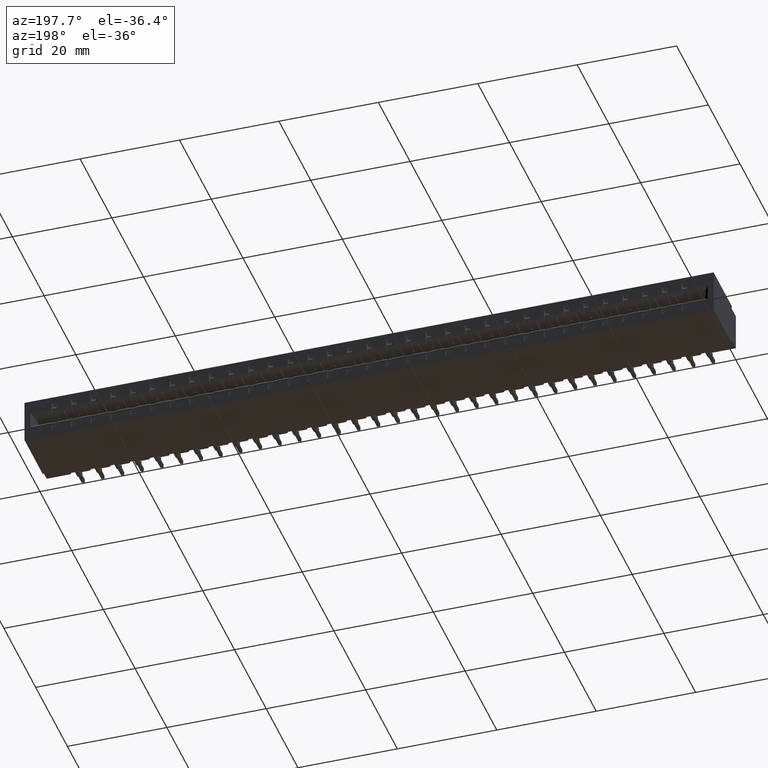
[diagram: clean part render]
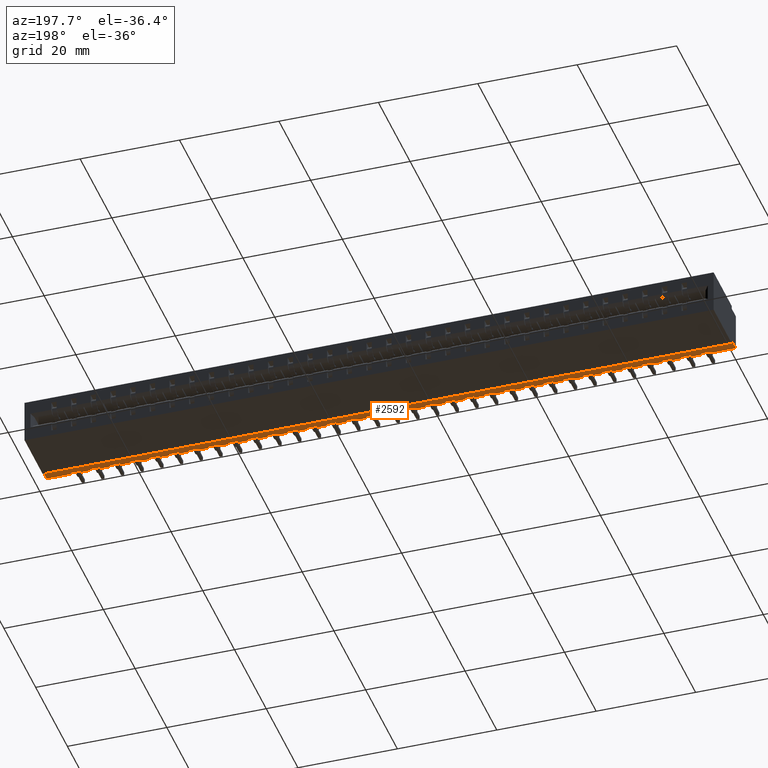
[diagram: same view with one face highlighted and labeled with its STEP entity id]
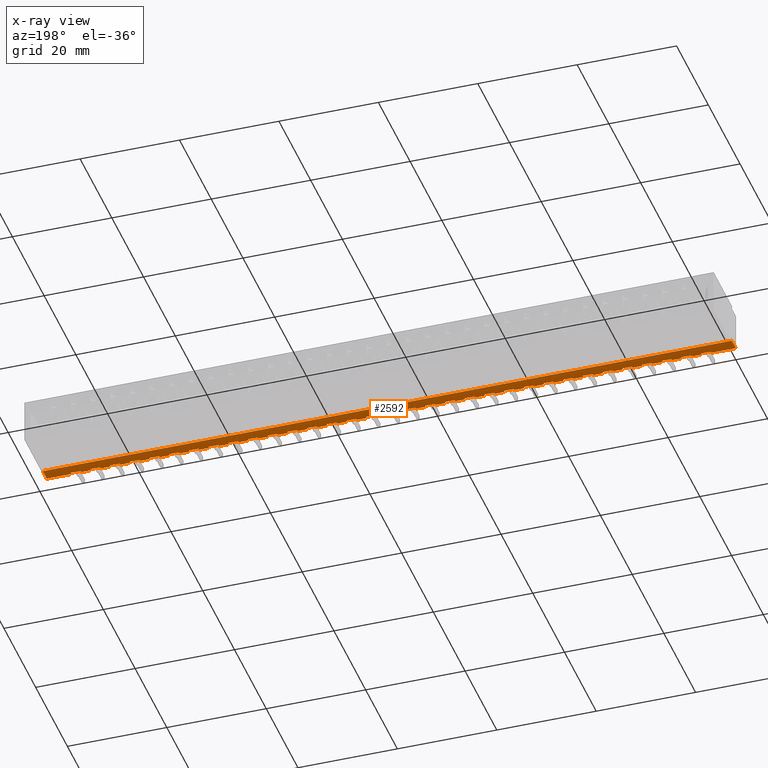
[diagram: x-ray of the same camera — body ghosted, the highlighted face saturated]
A machine part, auxiliary view. The second image highlights one B-rep face of the part: STEP entity #2592.
The next image is the same camera in x-ray: the body ghosted, the highlighted face saturated — about 0% of this face is hidden behind the body in this view.
In plain terms, the highlighted planar face has unit normal (0, 0, 1).
Its self-contained STEP definition (entity closure, byte-faithful):
#32 = ORIENTED_EDGE ( 'NONE', *, *, #50970, .T. ) ;
#72 = DIRECTION ( 'NONE',  ( -1.000000000000000000, -0.0000000000000000000, -0.0000000000000000000 ) ) ;
#219 = VERTEX_POINT ( 'NONE', #11016 ) ;
#254 = VERTEX_POINT ( 'NONE', #42965 ) ;
#300 = EDGE_CURVE ( 'NONE', #30091, #1377, #9610, .T. ) ;
#425 = ORIENTED_EDGE ( 'NONE', *, *, #21946, .F. ) ;
#434 = ORIENTED_EDGE ( 'NONE', *, *, #4743, .F. ) ;
#478 = VERTEX_POINT ( 'NONE', #8825 ) ;
#519 = VERTEX_POINT ( 'NONE', #8632 ) ;
#541 = ORIENTED_EDGE ( 'NONE', *, *, #15972, .F. ) ;
#695 = LINE ( 'NONE', #13894, #45611 ) ;
#735 = DIRECTION ( 'NONE',  ( -1.000000000000000000, -0.0000000000000000000, -0.0000000000000000000 ) ) ;
#792 = ORIENTED_EDGE ( 'NONE', *, *, #45967, .F. ) ;
#874 = EDGE_CURVE ( 'NONE', #23791, #34614, #8833, .T. ) ;
#900 = CARTESIAN_POINT ( 'NONE',  ( 2.920999999999999800, 0.01499999999999999400, -0.3249999999999999600 ) ) ;
#1068 = LINE ( 'NONE', #34716, #7372 ) ;
#1128 = CARTESIAN_POINT ( 'NONE',  ( 2.365999999999999700, 0.0000000000000000000, -0.3249999999999999600 ) ) ;
#1172 = VECTOR ( 'NONE', #5429, 39.37007874015748100 ) ;
#1226 = CARTESIAN_POINT ( 'NONE',  ( 5.458000000000000200, 0.0000000000000000000, -0.3249999999999999600 ) ) ;
#1231 = AXIS2_PLACEMENT_3D ( 'NONE', #30123, #39291, #12460 ) ;
#1301 = VERTEX_POINT ( 'NONE', #11270 ) ;
#1377 = VERTEX_POINT ( 'NONE', #51082 ) ;
#1468 = CARTESIAN_POINT ( 'NONE',  ( 1.741999999999999500, 0.01499999999999999400, -0.3249999999999999600 ) ) ;
#1492 = VERTEX_POINT ( 'NONE', #12622 ) ;
#1501 = EDGE_CURVE ( 'NONE', #49022, #11347, #53638, .T. ) ;
#1534 = CARTESIAN_POINT ( 'NONE',  ( 5.458000000000000200, 0.0000000000000000000, -0.3249999999999999600 ) ) ;
#1593 = ORIENTED_EDGE ( 'NONE', *, *, #24805, .F. ) ;
#1639 = VECTOR ( 'NONE', #32645, 39.37007874015748100 ) ;
#1656 = EDGE_CURVE ( 'NONE', #21622, #13574, #47276, .T. ) ;
#1660 = DIRECTION ( 'NONE',  ( 1.000000000000000000, 0.0000000000000000000, 0.0000000000000000000 ) ) ;
#1668 = CARTESIAN_POINT ( 'NONE',  ( 5.458000000000000200, 0.0000000000000000000, -0.3249999999999999600 ) ) ;
#1679 = EDGE_CURVE ( 'NONE', #23560, #37620, #40264, .T. ) ;
#1684 = LINE ( 'NONE', #26406, #48019 ) ;
#1697 = VECTOR ( 'NONE', #54292, 39.37007874015748100 ) ;
#1818 = DIRECTION ( 'NONE',  ( 1.000000000000000000, -0.0000000000000000000, -2.307304048702925100E-016 ) ) ;
#1858 = ORIENTED_EDGE ( 'NONE', *, *, #34017, .T. ) ;
#2030 = DIRECTION ( 'NONE',  ( 1.000000000000000000, 0.0000000000000000000, 0.0000000000000000000 ) ) ;
#2057 = LINE ( 'NONE', #12162, #17596 ) ;
#2108 = VERTEX_POINT ( 'NONE', #57413 ) ;
#2148 = VERTEX_POINT ( 'NONE', #12371 ) ;
#2199 = LINE ( 'NONE', #38430, #27548 ) ;
#2283 = CARTESIAN_POINT ( 'NONE',  ( 5.458000000000000200, 0.0000000000000000000, -0.3249999999999999600 ) ) ;
#2290 = CIRCLE ( 'NONE', #35405, 0.01500000000000024900 ) ;
#2363 = CARTESIAN_POINT ( 'NONE',  ( 4.480999999999999900, 0.01499999999999999400, -0.3249999999999999600 ) ) ;
#2429 = VERTEX_POINT ( 'NONE', #47204 ) ;
#2543 = CARTESIAN_POINT ( 'NONE',  ( 3.715999999999999700, 0.01499999999999999400, -0.3249999999999999600 ) ) ;
#2556 = DIRECTION ( 'NONE',  ( 1.000000000000000000, 0.0000000000000000000, 0.0000000000000000000 ) ) ;
#2563 = ORIENTED_EDGE ( 'NONE', *, *, #6717, .F. ) ;
#2585 = LINE ( 'NONE', #36772, #11046 ) ;
#2592 = ADVANCED_FACE ( 'NONE', ( #26178 ), #22344, .F. ) ;
#2631 = VERTEX_POINT ( 'NONE', #18382 ) ;
#2664 = DIRECTION ( 'NONE',  ( -1.000000000000000000, -0.0000000000000000000, -0.0000000000000000000 ) ) ;
#2666 = EDGE_CURVE ( 'NONE', #39478, #49022, #36660, .T. ) ;
#2717 = VECTOR ( 'NONE', #24525, 39.37007874015748100 ) ;
#2804 = EDGE_CURVE ( 'NONE', #21392, #12772, #19136, .T. ) ;
#2904 = AXIS2_PLACEMENT_3D ( 'NONE', #12680, #13270, #17429 ) ;
#2949 = AXIS2_PLACEMENT_3D ( 'NONE', #42215, #51228, #15387 ) ;
#2950 = CARTESIAN_POINT ( 'NONE',  ( 2.239999999999999800, 0.01500000000000003100, -0.3249999999999999600 ) ) ;
#3046 = AXIS2_PLACEMENT_3D ( 'NONE', #57612, #39799, #31011 ) ;
#3052 = CARTESIAN_POINT ( 'NONE',  ( 0.5809999999999998500, 0.01499999999999999400, -0.3249999999999999600 ) ) ;
#3070 = ORIENTED_EDGE ( 'NONE', *, *, #32432, .F. ) ;
#3078 = CARTESIAN_POINT ( 'NONE',  ( 5.458000000000000200, 0.0000000000000000000, -0.3249999999999999600 ) ) ;
#3107 = DIRECTION ( 'NONE',  ( -1.000000000000000000, -0.0000000000000000000, -0.0000000000000000000 ) ) ;
#3115 = CARTESIAN_POINT ( 'NONE',  ( 3.457999999999999700, 0.0000000000000000000, -0.3249999999999999600 ) ) ;
#3119 = DIRECTION ( 'NONE',  ( 1.000000000000000000, -0.0000000000000000000, -2.307304048702925100E-016 ) ) ;
#3154 = VECTOR ( 'NONE', #28295, 39.37007874015748100 ) ;
#3168 = AXIS2_PLACEMENT_3D ( 'NONE', #7358, #7165, #16831 ) ;
#3218 = EDGE_CURVE ( 'NONE', #56304, #46181, #30250, .T. ) ;
#3258 = CARTESIAN_POINT ( 'NONE',  ( 5.458000000000000200, 0.0000000000000000000, -0.3249999999999999600 ) ) ;
#3347 = CARTESIAN_POINT ( 'NONE',  ( 1.429999999999999700, 0.0000000000000000000, -0.3249999999999999600 ) ) ;
#3421 = DIRECTION ( 'NONE',  ( -1.000000000000000000, -0.0000000000000000000, -0.0000000000000000000 ) ) ;
#3425 = CARTESIAN_POINT ( 'NONE',  ( 3.940999999999999800, 0.01499999999999999400, -0.3249999999999999600 ) ) ;
#3619 = ORIENTED_EDGE ( 'NONE', *, *, #53204, .T. ) ;
#3651 = ORIENTED_EDGE ( 'NONE', *, *, #24545, .F. ) ;
#3691 = EDGE_CURVE ( 'NONE', #18570, #219, #10540, .T. ) ;
#3737 = ORIENTED_EDGE ( 'NONE', *, *, #52756, .T. ) ;
#3776 = EDGE_CURVE ( 'NONE', #54683, #18570, #695, .T. ) ;
#3800 = CIRCLE ( 'NONE', #2904, 0.01500000000000024900 ) ;
#3849 = EDGE_CURVE ( 'NONE', #41847, #32796, #19715, .T. ) ;
#3864 = VERTEX_POINT ( 'NONE', #23350 ) ;
#3883 = VERTEX_POINT ( 'NONE', #51537 ) ;
#3890 = CARTESIAN_POINT ( 'NONE',  ( 1.615999999999999900, 0.01500000000000003100, -0.3249999999999999600 ) ) ;
#3891 = CARTESIAN_POINT ( 'NONE',  ( 0.0000000000000000000, 0.0000000000000000000, -0.3249999999999999600 ) ) ;
#4122 = CARTESIAN_POINT ( 'NONE',  ( 2.311999999999999800, 0.0000000000000000000, -0.3249999999999999600 ) ) ;
#4127 = ORIENTED_EDGE ( 'NONE', *, *, #2666, .T. ) ;
#4255 = LINE ( 'NONE', #1668, #42854 ) ;
#4318 = CARTESIAN_POINT ( 'NONE',  ( 5.458000000000000200, 0.0000000000000000000, -0.3249999999999999600 ) ) ;
#4374 = VERTEX_POINT ( 'NONE', #33204 ) ;
#4416 = DIRECTION ( 'NONE',  ( 1.000000000000000000, 0.0000000000000000000, 0.0000000000000000000 ) ) ;
#4430 = VERTEX_POINT ( 'NONE', #2363 ) ;
#4442 = DIRECTION ( 'NONE',  ( 1.000000000000000000, 0.0000000000000000000, 0.0000000000000000000 ) ) ;
#4571 = CIRCLE ( 'NONE', #30405, 0.01500000000000004500 ) ;
#4587 = CARTESIAN_POINT ( 'NONE',  ( 1.063999999999999800, 0.01499999999999999400, -0.3249999999999999600 ) ) ;
#4730 = CIRCLE ( 'NONE', #56901, 0.01499999999999997700 ) ;
#4743 = EDGE_CURVE ( 'NONE', #15551, #42585, #2057, .T. ) ;
#4791 = DIRECTION ( 'NONE',  ( -1.000000000000000000, -0.0000000000000000000, -0.0000000000000000000 ) ) ;
#4866 = CARTESIAN_POINT ( 'NONE',  ( 1.063999999999999800, 0.0000000000000000000, -0.3249999999999999600 ) ) ;
#4962 = DIRECTION ( 'NONE',  ( -1.000000000000000000, -0.0000000000000000000, -0.0000000000000000000 ) ) ;
#4971 = ORIENTED_EDGE ( 'NONE', *, *, #20287, .T. ) ;
#5006 = VECTOR ( 'NONE', #45659, 39.37007874015748100 ) ;
#5056 = VECTOR ( 'NONE', #27101, 39.37007874015748100 ) ;
#5119 = EDGE_CURVE ( 'NONE', #25432, #11347, #17546, .T. ) ;
#5190 = AXIS2_PLACEMENT_3D ( 'NONE', #19731, #42012, #41616 ) ;
#5204 = CARTESIAN_POINT ( 'NONE',  ( 3.871999999999999400, 0.01499999999999999400, -0.3249999999999999600 ) ) ;
#5261 = VERTEX_POINT ( 'NONE', #39140 ) ;
#5313 = CARTESIAN_POINT ( 'NONE',  ( 3.955999999999999500, 0.01500000000000003100, -0.3249999999999999600 ) ) ;
#5354 = VECTOR ( 'NONE', #18014, 39.37007874015748100 ) ;
#5364 = DIRECTION ( 'NONE',  ( 0.0000000000000000000, 0.0000000000000000000, 1.000000000000000000 ) ) ;
#5408 = CARTESIAN_POINT ( 'NONE',  ( 4.495999999999999600, 0.01499999999999999400, -0.3249999999999999600 ) ) ;
#5429 = DIRECTION ( 'NONE',  ( 1.000000000000000000, -0.0000000000000000000, -2.307304048702925100E-016 ) ) ;
#5476 = CARTESIAN_POINT ( 'NONE',  ( 5.017999999999999800, 0.0000000000000000000, -0.3249999999999999600 ) ) ;
#5595 = CARTESIAN_POINT ( 'NONE',  ( 3.403999999999999500, 0.0000000000000000000, -0.3249999999999999600 ) ) ;
#5644 = DIRECTION ( 'NONE',  ( 1.000000000000000000, 0.0000000000000000000, 0.0000000000000000000 ) ) ;
#5778 = EDGE_CURVE ( 'NONE', #22591, #36468, #48962, .T. ) ;
#5804 = CARTESIAN_POINT ( 'NONE',  ( 3.769999999999999600, 0.01499999999999999400, -0.3249999999999999600 ) ) ;
#5881 = DIRECTION ( 'NONE',  ( 1.000000000000000000, -0.0000000000000000000, -2.307304048702925100E-016 ) ) ;
#5892 = DIRECTION ( 'NONE',  ( -0.0000000000000000000, -0.0000000000000000000, -1.000000000000000000 ) ) ;
#5991 = CIRCLE ( 'NONE', #39375, 0.01500000000000024900 ) ;
#6031 = DIRECTION ( 'NONE',  ( -1.000000000000000000, -0.0000000000000000000, -0.0000000000000000000 ) ) ;
#6089 = EDGE_CURVE ( 'NONE', #48986, #16824, #22303, .T. ) ;
#6201 = CARTESIAN_POINT ( 'NONE',  ( 5.458000000000000200, 0.0000000000000000000, -0.3249999999999999600 ) ) ;
#6229 = VECTOR ( 'NONE', #15093, 39.37007874015748100 ) ;
#6251 = DIRECTION ( 'NONE',  ( 1.000000000000000000, 0.0000000000000000000, 0.0000000000000000000 ) ) ;
#6279 = VERTEX_POINT ( 'NONE', #46755 ) ;
#6288 = CARTESIAN_POINT ( 'NONE',  ( 4.735999999999999800, 0.01500000000000003100, -0.3249999999999999600 ) ) ;
#6510 = EDGE_CURVE ( 'NONE', #53002, #20632, #33474, .T. ) ;
#6594 = CIRCLE ( 'NONE', #16447, 0.01499999999999997700 ) ;
#6685 = VERTEX_POINT ( 'NONE', #54150 ) ;
#6717 = EDGE_CURVE ( 'NONE', #19704, #24791, #21507, .T. ) ;
#6726 = VERTEX_POINT ( 'NONE', #13971 ) ;
#6755 = ORIENTED_EDGE ( 'NONE', *, *, #40561, .T. ) ;
#6880 = DIRECTION ( 'NONE',  ( 1.000000000000000000, -0.0000000000000000000, -2.307304048702925100E-016 ) ) ;
#6953 = LINE ( 'NONE', #47696, #8209 ) ;
#6954 = VECTOR ( 'NONE', #19171, 39.37007874015748100 ) ;
#6962 = VECTOR ( 'NONE', #51446, 39.37007874015748100 ) ;
#6987 = AXIS2_PLACEMENT_3D ( 'NONE', #35921, #8990, #14522 ) ;
#7165 = DIRECTION ( 'NONE',  ( 0.0000000000000000000, 0.0000000000000000000, 1.000000000000000000 ) ) ;
#7171 = DIRECTION ( 'NONE',  ( -1.000000000000000000, -0.0000000000000000000, -0.0000000000000000000 ) ) ;
#7358 = CARTESIAN_POINT ( 'NONE',  ( 2.209999999999999500, 0.01499999999999999400, -0.3249999999999999600 ) ) ;
#7372 = VECTOR ( 'NONE', #34137, 39.37007874015748100 ) ;
#7392 = CARTESIAN_POINT ( 'NONE',  ( 5.458000000000000200, 0.0000000000000000000, -0.3249999999999999600 ) ) ;
#7437 = EDGE_CURVE ( 'NONE', #21092, #42585, #52232, .T. ) ;
#7476 = EDGE_CURVE ( 'NONE', #36214, #21092, #50831, .T. ) ;
#7576 = EDGE_CURVE ( 'NONE', #20396, #54816, #29145, .T. ) ;
#7724 = ORIENTED_EDGE ( 'NONE', *, *, #32521, .T. ) ;
#7782 = EDGE_CURVE ( 'NONE', #2631, #44580, #33302, .T. ) ;
#7809 = CARTESIAN_POINT ( 'NONE',  ( 3.232999999999999700, 0.01499999999999999400, -0.3249999999999999600 ) ) ;
#7995 = EDGE_CURVE ( 'NONE', #27292, #52967, #48009, .T. ) ;
#8139 = AXIS2_PLACEMENT_3D ( 'NONE', #25774, #30051, #57060 ) ;
#8179 = ORIENTED_EDGE ( 'NONE', *, *, #22323, .T. ) ;
#8199 = EDGE_CURVE ( 'NONE', #57283, #53015, #48631, .T. ) ;
#8209 = VECTOR ( 'NONE', #43763, 39.37007874015748100 ) ;
#8241 = ORIENTED_EDGE ( 'NONE', *, *, #14011, .T. ) ;
#8258 = CARTESIAN_POINT ( 'NONE',  ( 3.799999999999999400, 0.01500000000000003100, -0.3249999999999999600 ) ) ;
#8281 = DIRECTION ( 'NONE',  ( 0.0000000000000000000, 0.0000000000000000000, 1.000000000000000000 ) ) ;
#8343 = CARTESIAN_POINT ( 'NONE',  ( 4.324999999999999300, 0.01499999999999999400, -0.3249999999999999600 ) ) ;
#8368 = AXIS2_PLACEMENT_3D ( 'NONE', #41033, #41224, #50287 ) ;
#8451 = DIRECTION ( 'NONE',  ( -1.000000000000000000, -0.0000000000000000000, -0.0000000000000000000 ) ) ;
#8555 = CARTESIAN_POINT ( 'NONE',  ( 0.3679999999999998800, 0.01500000000000003100, -0.3249999999999999600 ) ) ;
#8582 = ORIENTED_EDGE ( 'NONE', *, *, #3849, .T. ) ;
#8584 = ORIENTED_EDGE ( 'NONE', *, *, #31332, .F. ) ;
#8632 = CARTESIAN_POINT ( 'NONE',  ( 2.609000000000000000, 0.01499999999999999400, -0.3249999999999999600 ) ) ;
#8739 = ORIENTED_EDGE ( 'NONE', *, *, #25112, .T. ) ;
#8754 = VECTOR ( 'NONE', #37812, 39.37007874015748100 ) ;
#8771 = ORIENTED_EDGE ( 'NONE', *, *, #49583, .T. ) ;
#8804 = ORIENTED_EDGE ( 'NONE', *, *, #33823, .F. ) ;
#8809 = DIRECTION ( 'NONE',  ( -1.000000000000000000, -0.0000000000000000000, -0.0000000000000000000 ) ) ;
#8813 = ORIENTED_EDGE ( 'NONE', *, *, #26950, .T. ) ;
#8825 = CARTESIAN_POINT ( 'NONE',  ( 0.6649999999999999200, 0.01499999999999999400, -0.3249999999999999600 ) ) ;
#8827 = ORIENTED_EDGE ( 'NONE', *, *, #7576, .T. ) ;
#8833 = LINE ( 'NONE', #7392, #21502 ) ;
#8928 = CIRCLE ( 'NONE', #43784, 0.01500000000000024900 ) ;
#8939 = EDGE_CURVE ( 'NONE', #52530, #6279, #12063, .T. ) ;
#8990 = DIRECTION ( 'NONE',  ( -0.0000000000000000000, -0.0000000000000000000, -1.000000000000000000 ) ) ;
#9021 = DIRECTION ( 'NONE',  ( 1.000000000000000000, 0.0000000000000000000, 0.0000000000000000000 ) ) ;
#9118 = DIRECTION ( 'NONE',  ( 1.000000000000000000, -0.0000000000000000000, -2.307304048702925100E-016 ) ) ;
#9136 = CIRCLE ( 'NONE', #24113, 0.01500000000000024900 ) ;
#9162 = VECTOR ( 'NONE', #22186, 39.37007874015748100 ) ;
#9248 = AXIS2_PLACEMENT_3D ( 'NONE', #47618, #42905, #24750 ) ;
#9292 = DIRECTION ( 'NONE',  ( 1.000000000000000000, 0.0000000000000000000, 0.0000000000000000000 ) ) ;
#9298 = EDGE_CURVE ( 'NONE', #32674, #51879, #46379, .T. ) ;
#9427 = CARTESIAN_POINT ( 'NONE',  ( 2.677999999999999500, 0.0000000000000000000, -0.3249999999999999600 ) ) ;
#9433 = DIRECTION ( 'NONE',  ( 1.000000000000000000, 0.0000000000000000000, 0.0000000000000000000 ) ) ;
#9610 = CIRCLE ( 'NONE', #8139, 0.01499999999999997700 ) ;
#9648 = EDGE_CURVE ( 'NONE', #42353, #37199, #2199, .T. ) ;
#9738 = AXIS2_PLACEMENT_3D ( 'NONE', #5408, #41884, #15078 ) ;
#9748 = DIRECTION ( 'NONE',  ( -1.000000000000000000, -0.0000000000000000000, -0.0000000000000000000 ) ) ;
#10071 = CARTESIAN_POINT ( 'NONE',  ( 4.652000000000000100, 0.01499999999999999400, -0.3249999999999999600 ) ) ;
#10113 = AXIS2_PLACEMENT_3D ( 'NONE', #44701, #35748, #13166 ) ;
#10125 = AXIS2_PLACEMENT_3D ( 'NONE', #22377, #40892, #40123 ) ;
#10144 = CARTESIAN_POINT ( 'NONE',  ( 2.834000000000000100, 0.01499999999999999400, -0.3249999999999999600 ) ) ;
#10221 = ORIENTED_EDGE ( 'NONE', *, *, #1679, .F. ) ;
#10233 = CARTESIAN_POINT ( 'NONE',  ( 4.495999999999999600, 0.0000000000000000000, -0.3249999999999999600 ) ) ;
#10265 = VERTEX_POINT ( 'NONE', #45743 ) ;
#10337 = CARTESIAN_POINT ( 'NONE',  ( 2.779999999999999800, 0.01499999999999999400, -0.3249999999999999600 ) ) ;
#10348 = EDGE_CURVE ( 'NONE', #32746, #31879, #26063, .T. ) ;
#10430 = DIRECTION ( 'NONE',  ( 1.000000000000000000, 0.0000000000000000000, 0.0000000000000000000 ) ) ;
#10516 = DIRECTION ( 'NONE',  ( 0.0000000000000000000, 0.0000000000000000000, 1.000000000000000000 ) ) ;
#10540 = LINE ( 'NONE', #3891, #21113 ) ;
#10564 = EDGE_CURVE ( 'NONE', #57315, #4430, #6953, .T. ) ;
#10568 = VERTEX_POINT ( 'NONE', #57081 ) ;
#10640 = CARTESIAN_POINT ( 'NONE',  ( 0.9619999999999997400, 0.01499999999999999400, -0.3249999999999999600 ) ) ;
#10747 = CARTESIAN_POINT ( 'NONE',  ( 5.458000000000000200, 0.0000000000000000000, -0.3249999999999999600 ) ) ;
#10834 = ORIENTED_EDGE ( 'NONE', *, *, #46114, .T. ) ;
#10841 = CARTESIAN_POINT ( 'NONE',  ( 5.458000000000000200, 0.0000000000000000000, -0.3249999999999999600 ) ) ;
#10920 = CARTESIAN_POINT ( 'NONE',  ( 3.629000000000000000, 0.01499999999999999400, -0.3249999999999999600 ) ) ;
#10969 = DIRECTION ( 'NONE',  ( -0.0000000000000000000, -0.0000000000000000000, -1.000000000000000000 ) ) ;
#11016 = CARTESIAN_POINT ( 'NONE',  ( 0.0000000000000000000, 0.1000000000000000100, -0.3249999999999999600 ) ) ;
#11019 = VECTOR ( 'NONE', #45174, 39.37007874015748100 ) ;
#11046 = VECTOR ( 'NONE', #4962, 39.37007874015748100 ) ;
#11119 = CARTESIAN_POINT ( 'NONE',  ( 3.091999999999999600, 0.01499999999999999400, -0.3249999999999999600 ) ) ;
#11131 = DIRECTION ( 'NONE',  ( 1.000000000000000000, 0.0000000000000000000, 0.0000000000000000000 ) ) ;
#11172 = CARTESIAN_POINT ( 'NONE',  ( 2.764999999999999700, 0.01499999999999999400, -0.3249999999999999600 ) ) ;
#11270 = CARTESIAN_POINT ( 'NONE',  ( 2.693000000000000100, 0.01499999999999999400, -0.3249999999999999600 ) ) ;
#11274 = ORIENTED_EDGE ( 'NONE', *, *, #3691, .T. ) ;
#11347 = VERTEX_POINT ( 'NONE', #900 ) ;
#11351 = ORIENTED_EDGE ( 'NONE', *, *, #874, .T. ) ;
#11376 = EDGE_CURVE ( 'NONE', #21403, #43803, #29833, .T. ) ;
#11455 = CIRCLE ( 'NONE', #28745, 0.01500000000000024900 ) ;
#11568 = ORIENTED_EDGE ( 'NONE', *, *, #12155, .T. ) ;
#11597 = CIRCLE ( 'NONE', #9738, 0.01500000000000024900 ) ;
#11644 = CARTESIAN_POINT ( 'NONE',  ( 5.458000000000000200, 0.0000000000000000000, -0.3249999999999999600 ) ) ;
#11649 = ORIENTED_EDGE ( 'NONE', *, *, #13634, .T. ) ;
#11831 = DIRECTION ( 'NONE',  ( 0.0000000000000000000, 0.0000000000000000000, 1.000000000000000000 ) ) ;
#12063 = LINE ( 'NONE', #3890, #5056 ) ;
#12110 = CIRCLE ( 'NONE', #45738, 0.01499999999999997700 ) ;
#12155 = EDGE_CURVE ( 'NONE', #1492, #6726, #31847, .T. ) ;
#12162 = CARTESIAN_POINT ( 'NONE',  ( 2.395999999999999900, 0.01500000000000003100, -0.3249999999999999600 ) ) ;
#12230 = CARTESIAN_POINT ( 'NONE',  ( 4.081999999999999900, 0.0000000000000000000, -0.3249999999999999600 ) ) ;
#12264 = DIRECTION ( 'NONE',  ( -0.0000000000000000000, -0.0000000000000000000, -1.000000000000000000 ) ) ;
#12270 = ORIENTED_EDGE ( 'NONE', *, *, #26468, .F. ) ;
#12355 = VECTOR ( 'NONE', #735, 39.37007874015748100 ) ;
#12359 = AXIS2_PLACEMENT_3D ( 'NONE', #33793, #20890, #56471 ) ;
#12366 = DIRECTION ( 'NONE',  ( 0.0000000000000000000, 0.0000000000000000000, 1.000000000000000000 ) ) ;
#12371 = CARTESIAN_POINT ( 'NONE',  ( 4.652000000000000100, 0.0000000000000000000, -0.3249999999999999600 ) ) ;
#12379 = CIRCLE ( 'NONE', #39465, 0.01500000000000024900 ) ;
#12383 = ORIENTED_EDGE ( 'NONE', *, *, #43311, .F. ) ;
#12460 = DIRECTION ( 'NONE',  ( 1.000000000000000000, 0.0000000000000000000, 0.0000000000000000000 ) ) ;
#12577 = DIRECTION ( 'NONE',  ( 1.000000000000000000, 0.0000000000000000000, 0.0000000000000000000 ) ) ;
#12595 = DIRECTION ( 'NONE',  ( 1.000000000000000000, -0.0000000000000000000, -2.307304048702925100E-016 ) ) ;
#12622 = CARTESIAN_POINT ( 'NONE',  ( 1.741999999999999500, 0.0000000000000000000, -0.3249999999999999600 ) ) ;
#12628 = VERTEX_POINT ( 'NONE', #25850 ) ;
#12680 = CARTESIAN_POINT ( 'NONE',  ( 3.925999999999999700, 0.01499999999999999400, -0.3249999999999999600 ) ) ;
#12772 = VERTEX_POINT ( 'NONE', #23494 ) ;
#12777 = VERTEX_POINT ( 'NONE', #45368 ) ;
#12819 = DIRECTION ( 'NONE',  ( 1.000000000000000000, 0.0000000000000000000, 0.0000000000000000000 ) ) ;
#12975 = CARTESIAN_POINT ( 'NONE',  ( 2.296999999999999700, 0.01499999999999999400, -0.3249999999999999600 ) ) ;
#12980 = EDGE_CURVE ( 'NONE', #42353, #50836, #56223, .T. ) ;
#13090 = LINE ( 'NONE', #1534, #12355 ) ;
#13166 = DIRECTION ( 'NONE',  ( 1.000000000000000000, 0.0000000000000000000, 0.0000000000000000000 ) ) ;
#13253 = CIRCLE ( 'NONE', #48074, 0.01499999999999970300 ) ;
#13270 = DIRECTION ( 'NONE',  ( 0.0000000000000000000, 0.0000000000000000000, 1.000000000000000000 ) ) ;
#13340 = AXIS2_PLACEMENT_3D ( 'NONE', #53831, #22893, #9292 ) ;
#13345 = ORIENTED_EDGE ( 'NONE', *, *, #35380, .T. ) ;
#13393 = CARTESIAN_POINT ( 'NONE',  ( 3.715999999999999700, 0.0000000000000000000, -0.3249999999999999600 ) ) ;
#13462 = CARTESIAN_POINT ( 'NONE',  ( 0.8209999999999999500, 0.01499999999999999400, -0.3249999999999999600 ) ) ;
#13471 = CIRCLE ( 'NONE', #50660, 0.01500000000000024900 ) ;
#13574 = VERTEX_POINT ( 'NONE', #16880 ) ;
#13634 = EDGE_CURVE ( 'NONE', #23609, #39038, #50632, .T. ) ;
#13841 = CARTESIAN_POINT ( 'NONE',  ( 5.458000000000000200, 0.0000000000000000000, -0.3249999999999999600 ) ) ;
#13847 = DIRECTION ( 'NONE',  ( 1.000000000000000000, 0.0000000000000000000, -0.0000000000000000000 ) ) ;
#13894 = CARTESIAN_POINT ( 'NONE',  ( 5.458000000000000200, 0.0000000000000000000, -0.3249999999999999600 ) ) ;
#13922 = VECTOR ( 'NONE', #39819, 39.37007874015748100 ) ;
#13971 = CARTESIAN_POINT ( 'NONE',  ( 1.687999999999999500, 0.0000000000000000000, -0.3249999999999999600 ) ) ;
#13972 = CARTESIAN_POINT ( 'NONE',  ( 1.600999999999999800, 0.01499999999999999400, -0.3249999999999999600 ) ) ;
#14011 = EDGE_CURVE ( 'NONE', #53002, #10265, #4255, .T. ) ;
#14021 = DIRECTION ( 'NONE',  ( 0.0000000000000000000, 0.0000000000000000000, 1.000000000000000000 ) ) ;
#14034 = DIRECTION ( 'NONE',  ( 0.0000000000000000000, 0.0000000000000000000, 1.000000000000000000 ) ) ;
#14038 = ORIENTED_EDGE ( 'NONE', *, *, #30371, .F. ) ;
#14050 = ORIENTED_EDGE ( 'NONE', *, *, #27765, .T. ) ;
#14083 = VECTOR ( 'NONE', #19346, 39.37007874015748100 ) ;
#14122 = CARTESIAN_POINT ( 'NONE',  ( 3.559999999999999600, 0.01499999999999999400, -0.3249999999999999600 ) ) ;
#14130 = CIRCLE ( 'NONE', #18430, 0.01500000000000024900 ) ;
#14205 = ORIENTED_EDGE ( 'NONE', *, *, #51164, .F. ) ;
#14350 = VERTEX_POINT ( 'NONE', #44955 ) ;
#14481 = LINE ( 'NONE', #3258, #25044 ) ;
#14510 = CARTESIAN_POINT ( 'NONE',  ( 2.863999999999999900, 0.01500000000000003100, -0.3249999999999999600 ) ) ;
#14522 = DIRECTION ( 'NONE',  ( 1.000000000000000000, 0.0000000000000000000, 0.0000000000000000000 ) ) ;
#14555 = CARTESIAN_POINT ( 'NONE',  ( 4.339999999999999900, 0.01499999999999999400, -0.3249999999999999600 ) ) ;
#14579 = ORIENTED_EDGE ( 'NONE', *, *, #17523, .F. ) ;
#14718 = CARTESIAN_POINT ( 'NONE',  ( 2.155999999999999700, 0.0000000000000000000, -0.3249999999999999600 ) ) ;
#14776 = ORIENTED_EDGE ( 'NONE', *, *, #57066, .T. ) ;
#14779 = CARTESIAN_POINT ( 'NONE',  ( 2.677999999999999500, 0.01499999999999999400, -0.3249999999999999600 ) ) ;
#14819 = VECTOR ( 'NONE', #5881, 39.37007874015748100 ) ;
#14844 = CARTESIAN_POINT ( 'NONE',  ( 2.623999999999999700, 0.0000000000000000000, -0.3249999999999999600 ) ) ;
#15021 = VERTEX_POINT ( 'NONE', #11172 ) ;
#15078 = DIRECTION ( 'NONE',  ( 1.000000000000000000, 0.0000000000000000000, 0.0000000000000000000 ) ) ;
#15091 = CARTESIAN_POINT ( 'NONE',  ( 4.393999999999999200, 0.0000000000000000000, -0.3249999999999999600 ) ) ;
#15093 = DIRECTION ( 'NONE',  ( 1.000000000000000000, -0.0000000000000000000, -2.307304048702925100E-016 ) ) ;
#15145 = LINE ( 'NONE', #45458, #3154 ) ;
#15298 = DIRECTION ( 'NONE',  ( -0.0000000000000000000, -0.0000000000000000000, -1.000000000000000000 ) ) ;
#15339 = CARTESIAN_POINT ( 'NONE',  ( 1.219999999999999800, 0.0000000000000000000, -0.3249999999999999600 ) ) ;
#15357 = ORIENTED_EDGE ( 'NONE', *, *, #22518, .T. ) ;
#15386 = CARTESIAN_POINT ( 'NONE',  ( 2.452999999999999800, 0.01499999999999999400, -0.3249999999999999600 ) ) ;
#15387 = DIRECTION ( 'NONE',  ( 1.000000000000000000, 0.0000000000000000000, 0.0000000000000000000 ) ) ;
#15388 = LINE ( 'NONE', #36450, #37148 ) ;
#15413 = CARTESIAN_POINT ( 'NONE',  ( 2.522000000000000200, 0.01499999999999999400, -0.3249999999999999600 ) ) ;
#15433 = ORIENTED_EDGE ( 'NONE', *, *, #45203, .T. ) ;
#15460 = CARTESIAN_POINT ( 'NONE',  ( 3.331999999999999400, 0.01500000000000003100, -0.3249999999999999600 ) ) ;
#15549 = DIRECTION ( 'NONE',  ( 0.0000000000000000000, 0.0000000000000000000, 1.000000000000000000 ) ) ;
#15551 = VERTEX_POINT ( 'NONE', #25223 ) ;
#15574 = DIRECTION ( 'NONE',  ( 1.000000000000000000, 0.0000000000000000000, 0.0000000000000000000 ) ) ;
#15591 = DIRECTION ( 'NONE',  ( -0.0000000000000000000, -0.0000000000000000000, -1.000000000000000000 ) ) ;
#15687 = VECTOR ( 'NONE', #6880, 39.37007874015748100 ) ;
#15707 = LINE ( 'NONE', #37547, #47911 ) ;
#15750 = VECTOR ( 'NONE', #41388, 39.37007874015748100 ) ;
#15809 = CARTESIAN_POINT ( 'NONE',  ( 1.687999999999999500, 0.01499999999999999400, -0.3249999999999999600 ) ) ;
#15889 = VECTOR ( 'NONE', #24695, 39.37007874015748100 ) ;
#15928 = EDGE_CURVE ( 'NONE', #39478, #3883, #8928, .T. ) ;
#15950 = CARTESIAN_POINT ( 'NONE',  ( 5.458000000000000200, 0.0000000000000000000, -0.3249999999999999600 ) ) ;
#15957 = DIRECTION ( 'NONE',  ( -0.0000000000000000000, -0.0000000000000000000, -1.000000000000000000 ) ) ;
#15972 = EDGE_CURVE ( 'NONE', #478, #3864, #35663, .T. ) ;
#16138 = ORIENTED_EDGE ( 'NONE', *, *, #37266, .T. ) ;
#16153 = LINE ( 'NONE', #55550, #6962 ) ;
#16166 = DIRECTION ( 'NONE',  ( 1.000000000000000000, 0.0000000000000000000, 0.0000000000000000000 ) ) ;
#16319 = CARTESIAN_POINT ( 'NONE',  ( 5.458000000000000200, 0.0000000000000000000, -0.3249999999999999600 ) ) ;
#16447 = AXIS2_PLACEMENT_3D ( 'NONE', #1468, #24126, #1660 ) ;
#16572 = VERTEX_POINT ( 'NONE', #14718 ) ;
#16596 = ORIENTED_EDGE ( 'NONE', *, *, #44345, .T. ) ;
#16603 = VERTEX_POINT ( 'NONE', #28064 ) ;
#16607 = DIRECTION ( 'NONE',  ( 1.000000000000000000, 0.0000000000000000000, 0.0000000000000000000 ) ) ;
#16670 = ORIENTED_EDGE ( 'NONE', *, *, #51659, .F. ) ;
#16788 = ORIENTED_EDGE ( 'NONE', *, *, #28361, .T. ) ;
#16824 = VERTEX_POINT ( 'NONE', #25877 ) ;
#16831 = DIRECTION ( 'NONE',  ( 1.000000000000000000, 0.0000000000000000000, 0.0000000000000000000 ) ) ;
#16880 = CARTESIAN_POINT ( 'NONE',  ( 4.012999999999999900, 0.01499999999999999400, -0.3249999999999999600 ) ) ;
#17026 = EDGE_CURVE ( 'NONE', #44251, #51114, #33430, .T. ) ;
#17030 = DIRECTION ( 'NONE',  ( 0.0000000000000000000, 0.0000000000000000000, 1.000000000000000000 ) ) ;
#17084 = ORIENTED_EDGE ( 'NONE', *, *, #37731, .F. ) ;
#17175 = DIRECTION ( 'NONE',  ( 1.000000000000000000, -0.0000000000000000000, -2.307304048702925100E-016 ) ) ;
#17205 = DIRECTION ( 'NONE',  ( 1.000000000000000000, -0.0000000000000000000, -2.307304048702925100E-016 ) ) ;
#17236 = CARTESIAN_POINT ( 'NONE',  ( 4.027999999999999600, 0.0000000000000000000, -0.3249999999999999600 ) ) ;
#17293 = VERTEX_POINT ( 'NONE', #19952 ) ;
#17321 = LINE ( 'NONE', #30164, #51636 ) ;
#17329 = ORIENTED_EDGE ( 'NONE', *, *, #47188, .T. ) ;
#17378 = CARTESIAN_POINT ( 'NONE',  ( 0.5959999999999998600, 0.0000000000000000000, -0.3249999999999999600 ) ) ;
#17384 = EDGE_CURVE ( 'NONE', #254, #2148, #57167, .T. ) ;
#17429 = DIRECTION ( 'NONE',  ( 1.000000000000000000, 0.0000000000000000000, 0.0000000000000000000 ) ) ;
#17430 = LINE ( 'NONE', #46740, #18808 ) ;
#17456 = VERTEX_POINT ( 'NONE', #43371 ) ;
#17465 = CARTESIAN_POINT ( 'NONE',  ( 3.544999999999999500, 0.01499999999999999400, -0.3249999999999999600 ) ) ;
#17523 = EDGE_CURVE ( 'NONE', #31948, #20077, #29822, .T. ) ;
#17538 = VERTEX_POINT ( 'NONE', #44719 ) ;
#17546 = LINE ( 'NONE', #14510, #6229 ) ;
#17596 = VECTOR ( 'NONE', #3119, 39.37007874015748100 ) ;
#17720 = VECTOR ( 'NONE', #28756, 39.37007874015748100 ) ;
#17737 = CIRCLE ( 'NONE', #25552, 0.01500000000000024900 ) ;
#17748 = VERTEX_POINT ( 'NONE', #20883 ) ;
#17756 = CARTESIAN_POINT ( 'NONE',  ( 2.707999999999999700, 0.01500000000000003100, -0.3249999999999999600 ) ) ;
#17932 = VECTOR ( 'NONE', #25260, 39.37007874015748100 ) ;
#17958 = ORIENTED_EDGE ( 'NONE', *, *, #7995, .T. ) ;
#18014 = DIRECTION ( 'NONE',  ( 1.000000000000000000, -0.0000000000000000000, -2.307304048702925100E-016 ) ) ;
#18133 = CARTESIAN_POINT ( 'NONE',  ( 5.203999999999998000, 0.01500000000000003100, -0.3249999999999999600 ) ) ;
#18167 = AXIS2_PLACEMENT_3D ( 'NONE', #15413, #33050, #55170 ) ;
#18233 = EDGE_CURVE ( 'NONE', #51891, #20396, #45125, .T. ) ;
#18335 = VECTOR ( 'NONE', #8451, 39.37007874015748100 ) ;
#18361 = CARTESIAN_POINT ( 'NONE',  ( 1.288999999999999900, 0.01499999999999999400, -0.3249999999999999600 ) ) ;
#18382 = CARTESIAN_POINT ( 'NONE',  ( 4.963999999999999500, 0.0000000000000000000, -0.3249999999999999600 ) ) ;
#18430 = AXIS2_PLACEMENT_3D ( 'NONE', #21469, #39425, #52763 ) ;
#18500 = CARTESIAN_POINT ( 'NONE',  ( 2.000000000000000000, 0.0000000000000000000, -0.3249999999999999600 ) ) ;
#18540 = CARTESIAN_POINT ( 'NONE',  ( 1.516999999999999700, 0.01499999999999999400, -0.3249999999999999600 ) ) ;
#18570 = VERTEX_POINT ( 'NONE', #26590 ) ;
#18757 = CARTESIAN_POINT ( 'NONE',  ( 5.104999999999999500, 0.01499999999999999400, -0.3249999999999999600 ) ) ;
#18786 = EDGE_CURVE ( 'NONE', #53069, #1301, #17737, .T. ) ;
#18808 = VECTOR ( 'NONE', #1818, 39.37007874015748100 ) ;
#18869 = DIRECTION ( 'NONE',  ( 0.0000000000000000000, 0.0000000000000000000, 1.000000000000000000 ) ) ;
#18878 = CIRCLE ( 'NONE', #58080, 0.01499999999999997700 ) ;
#18894 = EDGE_CURVE ( 'NONE', #23791, #17456, #41535, .T. ) ;
#18910 = CARTESIAN_POINT ( 'NONE',  ( 4.948999999999999800, 0.01499999999999999400, -0.3249999999999999600 ) ) ;
#18922 = EDGE_CURVE ( 'NONE', #44107, #57619, #14130, .T. ) ;
#18968 = EDGE_CURVE ( 'NONE', #34787, #41847, #35975, .T. ) ;
#19033 = CARTESIAN_POINT ( 'NONE',  ( 1.219999999999999800, 0.01499999999999999400, -0.3249999999999999600 ) ) ;
#19059 = LINE ( 'NONE', #44291, #51991 ) ;
#19069 = CARTESIAN_POINT ( 'NONE',  ( 2.989999999999999300, 0.0000000000000000000, -0.3249999999999999600 ) ) ;
#19136 = LINE ( 'NONE', #19768, #17720 ) ;
#19152 = CARTESIAN_POINT ( 'NONE',  ( 5.458000000000000200, 0.0000000000000000000, -0.3249999999999999600 ) ) ;
#19171 = DIRECTION ( 'NONE',  ( 1.000000000000000000, -0.0000000000000000000, -2.307304048702925100E-016 ) ) ;
#19221 = VERTEX_POINT ( 'NONE', #23548 ) ;
#19289 = DIRECTION ( 'NONE',  ( 1.000000000000000000, 0.0000000000000000000, 0.0000000000000000000 ) ) ;
#19346 = DIRECTION ( 'NONE',  ( -1.000000000000000000, -0.0000000000000000000, -0.0000000000000000000 ) ) ;
#19371 = ORIENTED_EDGE ( 'NONE', *, *, #56966, .F. ) ;
#19548 = ORIENTED_EDGE ( 'NONE', *, *, #18968, .T. ) ;
#19557 = CARTESIAN_POINT ( 'NONE',  ( 1.912999999999999800, 0.01499999999999999400, -0.3249999999999999600 ) ) ;
#19704 = VERTEX_POINT ( 'NONE', #5476 ) ;
#19715 = CIRCLE ( 'NONE', #29321, 0.01499999999999997700 ) ;
#19731 = CARTESIAN_POINT ( 'NONE',  ( 0.1819999999999999400, 0.01499999999999999400, -0.3249999999999999600 ) ) ;
#19768 = CARTESIAN_POINT ( 'NONE',  ( 3.643999999999999700, 0.01500000000000003100, -0.3249999999999999600 ) ) ;
#19792 = ORIENTED_EDGE ( 'NONE', *, *, #9648, .T. ) ;
#19840 = ORIENTED_EDGE ( 'NONE', *, *, #300, .F. ) ;
#19919 = DIRECTION ( 'NONE',  ( 0.0000000000000000000, 0.0000000000000000000, 1.000000000000000000 ) ) ;
#19952 = CARTESIAN_POINT ( 'NONE',  ( 3.076999999999999500, 0.01499999999999999400, -0.3249999999999999600 ) ) ;
#20003 = ORIENTED_EDGE ( 'NONE', *, *, #31844, .F. ) ;
#20034 = ORIENTED_EDGE ( 'NONE', *, *, #26451, .T. ) ;
#20041 = ORIENTED_EDGE ( 'NONE', *, *, #32628, .T. ) ;
#20077 = VERTEX_POINT ( 'NONE', #7809 ) ;
#20117 = VECTOR ( 'NONE', #7171, 39.37007874015748100 ) ;
#20269 = DIRECTION ( 'NONE',  ( -1.000000000000000000, -0.0000000000000000000, -0.0000000000000000000 ) ) ;
#20287 = EDGE_CURVE ( 'NONE', #31879, #15021, #9136, .T. ) ;
#20396 = VERTEX_POINT ( 'NONE', #28793 ) ;
#20422 = CARTESIAN_POINT ( 'NONE',  ( 4.027999999999999600, 0.01499999999999999400, -0.3249999999999999600 ) ) ;
#20456 = CIRCLE ( 'NONE', #29800, 0.01500000000000024900 ) ;
#20632 = VERTEX_POINT ( 'NONE', #13462 ) ;
#20641 = CIRCLE ( 'NONE', #43735, 0.01500000000000024900 ) ;
#20711 = CARTESIAN_POINT ( 'NONE',  ( 1.360999999999999800, 0.01499999999999999400, -0.3249999999999999600 ) ) ;
#20717 = EDGE_CURVE ( 'NONE', #32674, #21392, #36517, .T. ) ;
#20876 = ORIENTED_EDGE ( 'NONE', *, *, #7476, .T. ) ;
#20883 = CARTESIAN_POINT ( 'NONE',  ( 0.9619999999999997400, 0.0000000000000000000, -0.3249999999999999600 ) ) ;
#20890 = DIRECTION ( 'NONE',  ( 0.0000000000000000000, 0.0000000000000000000, 1.000000000000000000 ) ) ;
#20907 = CARTESIAN_POINT ( 'NONE',  ( 1.843999999999999900, 0.01499999999999999400, -0.3249999999999999600 ) ) ;
#20916 = LINE ( 'NONE', #2283, #35620 ) ;
#21032 = DIRECTION ( 'NONE',  ( 1.000000000000000000, 0.0000000000000000000, 0.0000000000000000000 ) ) ;
#21092 = VERTEX_POINT ( 'NONE', #40534 ) ;
#21113 = VECTOR ( 'NONE', #39775, 39.37007874015748100 ) ;
#21119 = ORIENTED_EDGE ( 'NONE', *, *, #8939, .F. ) ;
#21230 = CARTESIAN_POINT ( 'NONE',  ( 0.4939999999999998800, 0.0000000000000000000, -0.3249999999999999600 ) ) ;
#21236 = DIRECTION ( 'NONE',  ( 1.000000000000000000, 0.0000000000000000000, 0.0000000000000000000 ) ) ;
#21266 = EDGE_CURVE ( 'NONE', #19704, #2631, #15388, .T. ) ;
#21276 = DIRECTION ( 'NONE',  ( 0.0000000000000000000, 0.0000000000000000000, 1.000000000000000000 ) ) ;
#21287 = AXIS2_PLACEMENT_3D ( 'NONE', #56255, #38265, #47264 ) ;
#21329 = EDGE_CURVE ( 'NONE', #50836, #50132, #25938, .T. ) ;
#21371 = VECTOR ( 'NONE', #4791, 39.37007874015748100 ) ;
#21392 = VERTEX_POINT ( 'NONE', #10920 ) ;
#21403 = VERTEX_POINT ( 'NONE', #15091 ) ;
#21412 = DIRECTION ( 'NONE',  ( -1.000000000000000000, -0.0000000000000000000, -0.0000000000000000000 ) ) ;
#21469 = CARTESIAN_POINT ( 'NONE',  ( 3.403999999999999500, 0.01499999999999999400, -0.3249999999999999600 ) ) ;
#21502 = VECTOR ( 'NONE', #38793, 39.37007874015748100 ) ;
#21507 = CIRCLE ( 'NONE', #31728, 0.01499999999999970300 ) ;
#21543 = DIRECTION ( 'NONE',  ( 1.000000000000000000, 0.0000000000000000000, 0.0000000000000000000 ) ) ;
#21570 = ORIENTED_EDGE ( 'NONE', *, *, #27057, .F. ) ;
#21622 = VERTEX_POINT ( 'NONE', #3425 ) ;
#21624 = ORIENTED_EDGE ( 'NONE', *, *, #47721, .T. ) ;
#21638 = VECTOR ( 'NONE', #48196, 39.37007874015748100 ) ;
#21705 = DIRECTION ( 'NONE',  ( -0.0000000000000000000, -0.0000000000000000000, -1.000000000000000000 ) ) ;
#21882 = VERTEX_POINT ( 'NONE', #23490 ) ;
#21946 = EDGE_CURVE ( 'NONE', #50785, #519, #17430, .T. ) ;
#21981 = CARTESIAN_POINT ( 'NONE',  ( 2.522000000000000200, 0.0000000000000000000, -0.3249999999999999600 ) ) ;
#22025 = VECTOR ( 'NONE', #21412, 39.37007874015748100 ) ;
#22039 = ORIENTED_EDGE ( 'NONE', *, *, #24059, .F. ) ;
#22057 = LINE ( 'NONE', #13841, #21371 ) ;
#22121 = CARTESIAN_POINT ( 'NONE',  ( 4.168999999999999600, 0.01499999999999999400, -0.3249999999999999600 ) ) ;
#22186 = DIRECTION ( 'NONE',  ( 1.000000000000000000, -0.0000000000000000000, -2.307304048702925100E-016 ) ) ;
#22198 = ORIENTED_EDGE ( 'NONE', *, *, #17026, .F. ) ;
#22303 = LINE ( 'NONE', #8555, #41165 ) ;
#22322 = ORIENTED_EDGE ( 'NONE', *, *, #27687, .T. ) ;
#22323 = EDGE_CURVE ( 'NONE', #37129, #42578, #25827, .T. ) ;
#22344 = PLANE ( 'NONE',  #31537 ) ;
#22377 = CARTESIAN_POINT ( 'NONE',  ( 4.549999999999999800, 0.01499999999999999400, -0.3249999999999999600 ) ) ;
#22408 = AXIS2_PLACEMENT_3D ( 'NONE', #20907, #25404, #56679 ) ;
#22443 = EDGE_CURVE ( 'NONE', #48538, #49472, #12379, .T. ) ;
#22446 = CARTESIAN_POINT ( 'NONE',  ( 1.585999999999999600, 0.01499999999999999400, -0.3249999999999999600 ) ) ;
#22518 = EDGE_CURVE ( 'NONE', #57283, #16572, #36252, .T. ) ;
#22534 = DIRECTION ( 'NONE',  ( 0.0000000000000000000, 0.0000000000000000000, 1.000000000000000000 ) ) ;
#22591 = VERTEX_POINT ( 'NONE', #15339 ) ;
#22774 = DIRECTION ( 'NONE',  ( -1.000000000000000000, -0.0000000000000000000, -0.0000000000000000000 ) ) ;
#22810 = CIRCLE ( 'NONE', #39651, 0.01500000000000024900 ) ;
#22893 = DIRECTION ( 'NONE',  ( -0.0000000000000000000, -0.0000000000000000000, -1.000000000000000000 ) ) ;
#22923 = ORIENTED_EDGE ( 'NONE', *, *, #5119, .F. ) ;
#22928 = LINE ( 'NONE', #52071, #31348 ) ;
#22937 = ORIENTED_EDGE ( 'NONE', *, *, #35142, .T. ) ;
#23044 = AXIS2_PLACEMENT_3D ( 'NONE', #20422, #42888, #11131 ) ;
#23130 = ORIENTED_EDGE ( 'NONE', *, *, #33396, .F. ) ;
#23131 = AXIS2_PLACEMENT_3D ( 'NONE', #52137, #34144, #56425 ) ;
#23251 = ORIENTED_EDGE ( 'NONE', *, *, #53263, .F. ) ;
#23350 = CARTESIAN_POINT ( 'NONE',  ( 0.7369999999999997700, 0.01499999999999999400, -0.3249999999999999600 ) ) ;
#23400 = VERTEX_POINT ( 'NONE', #37498 ) ;
#23490 = CARTESIAN_POINT ( 'NONE',  ( 4.636999999999999600, 0.01499999999999999400, -0.3249999999999999600 ) ) ;
#23494 = CARTESIAN_POINT ( 'NONE',  ( 3.700999999999999600, 0.01499999999999999400, -0.3249999999999999600 ) ) ;
#23534 = ORIENTED_EDGE ( 'NONE', *, *, #51237, .F. ) ;
#23548 = CARTESIAN_POINT ( 'NONE',  ( 4.549999999999999800, 0.0000000000000000000, -0.3249999999999999600 ) ) ;
#23560 = VERTEX_POINT ( 'NONE', #3115 ) ;
#23578 = DIRECTION ( 'NONE',  ( 1.000000000000000000, 0.0000000000000000000, 0.0000000000000000000 ) ) ;
#23609 = VERTEX_POINT ( 'NONE', #21230 ) ;
#23634 = CIRCLE ( 'NONE', #49532, 0.01500000000000024900 ) ;
#23738 = LINE ( 'NONE', #17756, #46100 ) ;
#23791 = VERTEX_POINT ( 'NONE', #44066 ) ;
#23800 = ORIENTED_EDGE ( 'NONE', *, *, #53897, .F. ) ;
#23803 = CARTESIAN_POINT ( 'NONE',  ( 0.5090000000000000100, 0.01499999999999999400, -0.3249999999999999600 ) ) ;
#23816 = CARTESIAN_POINT ( 'NONE',  ( 1.771999999999999800, 0.01500000000000003100, -0.3249999999999999600 ) ) ;
#23906 = ORIENTED_EDGE ( 'NONE', *, *, #8199, .F. ) ;
#23930 = DIRECTION ( 'NONE',  ( 1.000000000000000000, 0.0000000000000000000, 0.0000000000000000000 ) ) ;
#23982 = CARTESIAN_POINT ( 'NONE',  ( 5.260999999999999200, 0.01499999999999999400, -0.3249999999999999600 ) ) ;
#24028 = CARTESIAN_POINT ( 'NONE',  ( 0.4399999999999998900, 0.01499999999999999400, -0.3249999999999999600 ) ) ;
#24059 = EDGE_CURVE ( 'NONE', #12777, #38034, #53972, .T. ) ;
#24085 = VECTOR ( 'NONE', #3107, 39.37007874015748100 ) ;
#24113 = AXIS2_PLACEMENT_3D ( 'NONE', #10337, #24143, #36834 ) ;
#24118 = EDGE_CURVE ( 'NONE', #35979, #12628, #30816, .T. ) ;
#24126 = DIRECTION ( 'NONE',  ( 0.0000000000000000000, 0.0000000000000000000, 1.000000000000000000 ) ) ;
#24132 = ORIENTED_EDGE ( 'NONE', *, *, #33647, .F. ) ;
#24143 = DIRECTION ( 'NONE',  ( -0.0000000000000000000, -0.0000000000000000000, -1.000000000000000000 ) ) ;
#24153 = EDGE_CURVE ( 'NONE', #55466, #38034, #51113, .T. ) ;
#24349 = VERTEX_POINT ( 'NONE', #18361 ) ;
#24365 = CIRCLE ( 'NONE', #39728, 0.01500000000000024900 ) ;
#24372 = EDGE_CURVE ( 'NONE', #34175, #37612, #46887, .T. ) ;
#24420 = DIRECTION ( 'NONE',  ( 1.000000000000000000, -0.0000000000000000000, -2.307304048702925100E-016 ) ) ;
#24525 = DIRECTION ( 'NONE',  ( 1.000000000000000000, -0.0000000000000000000, -2.307304048702925100E-016 ) ) ;
#24539 = CARTESIAN_POINT ( 'NONE',  ( 1.532000000000000000, 0.0000000000000000000, -0.3249999999999999600 ) ) ;
#24545 = EDGE_CURVE ( 'NONE', #49672, #15551, #26596, .T. ) ;
#24665 = CARTESIAN_POINT ( 'NONE',  ( 2.053999999999999800, 0.0000000000000000000, -0.3249999999999999600 ) ) ;
#24681 = CARTESIAN_POINT ( 'NONE',  ( 4.891999999999999500, 0.01500000000000003100, -0.3249999999999999600 ) ) ;
#24695 = DIRECTION ( 'NONE',  ( 1.000000000000000000, -0.0000000000000000000, -2.307304048702925100E-016 ) ) ;
#24750 = DIRECTION ( 'NONE',  ( 1.000000000000000000, 0.0000000000000000000, 0.0000000000000000000 ) ) ;
#24752 = ORIENTED_EDGE ( 'NONE', *, *, #7782, .T. ) ;
#24791 = VERTEX_POINT ( 'NONE', #36135 ) ;
#24805 = EDGE_CURVE ( 'NONE', #34787, #52530, #56594, .T. ) ;
#24826 = CIRCLE ( 'NONE', #56508, 0.01500000000000004500 ) ;
#25044 = VECTOR ( 'NONE', #48358, 39.37007874015748100 ) ;
#25072 = CARTESIAN_POINT ( 'NONE',  ( 5.458000000000000200, 0.0000000000000000000, -0.3249999999999999600 ) ) ;
#25112 = EDGE_CURVE ( 'NONE', #37199, #46917, #40452, .T. ) ;
#25223 = CARTESIAN_POINT ( 'NONE',  ( 2.380999999999999800, 0.01499999999999999400, -0.3249999999999999600 ) ) ;
#25254 = ORIENTED_EDGE ( 'NONE', *, *, #21329, .F. ) ;
#25260 = DIRECTION ( 'NONE',  ( -1.000000000000000000, -0.0000000000000000000, -0.0000000000000000000 ) ) ;
#25333 = CIRCLE ( 'NONE', #49285, 0.01500000000000024900 ) ;
#25337 = LINE ( 'NONE', #30341, #29522 ) ;
#25339 = CIRCLE ( 'NONE', #34211, 0.01499999999999997700 ) ;
#25404 = DIRECTION ( 'NONE',  ( -0.0000000000000000000, -0.0000000000000000000, -1.000000000000000000 ) ) ;
#25432 = VERTEX_POINT ( 'NONE', #49869 ) ;
#25466 = CARTESIAN_POINT ( 'NONE',  ( 4.807999999999999800, 0.01499999999999999400, -0.3249999999999999600 ) ) ;
#25552 = AXIS2_PLACEMENT_3D ( 'NONE', #14779, #33184, #19289 ) ;
#25602 = DIRECTION ( 'NONE',  ( 1.000000000000000000, 0.0000000000000000000, 0.0000000000000000000 ) ) ;
#25726 = CARTESIAN_POINT ( 'NONE',  ( 5.458000000000000200, 0.0000000000000000000, -0.3249999999999999600 ) ) ;
#25774 = CARTESIAN_POINT ( 'NONE',  ( 1.429999999999999700, 0.01499999999999999400, -0.3249999999999999600 ) ) ;
#25827 = LINE ( 'NONE', #49060, #45370 ) ;
#25850 = CARTESIAN_POINT ( 'NONE',  ( 1.133000000000000000, 0.01499999999999999400, -0.3249999999999999600 ) ) ;
#25877 = CARTESIAN_POINT ( 'NONE',  ( 0.4249999999999998200, 0.01499999999999999400, -0.3249999999999999600 ) ) ;
#25911 = LINE ( 'NONE', #8258, #13922 ) ;
#25936 = EDGE_CURVE ( 'NONE', #28073, #48473, #15145, .T. ) ;
#25938 = LINE ( 'NONE', #46217, #2717 ) ;
#26005 = VERTEX_POINT ( 'NONE', #50196 ) ;
#26063 = LINE ( 'NONE', #19152, #14083 ) ;
#26104 = AXIS2_PLACEMENT_3D ( 'NONE', #49518, #14021, #40651 ) ;
#26178 = FACE_OUTER_BOUND ( 'NONE', #38088, .T. ) ;
#26265 = VERTEX_POINT ( 'NONE', #44640 ) ;
#26345 = CARTESIAN_POINT ( 'NONE',  ( 0.8929999999999999000, 0.01499999999999999400, -0.3249999999999999600 ) ) ;
#26406 = CARTESIAN_POINT ( 'NONE',  ( 1.147999999999999700, 0.01500000000000003100, -0.3249999999999999600 ) ) ;
#26416 = CARTESIAN_POINT ( 'NONE',  ( 1.897999999999999900, 0.01499999999999999400, -0.3249999999999999600 ) ) ;
#26435 = DIRECTION ( 'NONE',  ( 1.000000000000000000, 0.0000000000000000000, 0.0000000000000000000 ) ) ;
#26451 = EDGE_CURVE ( 'NONE', #35096, #26265, #22810, .T. ) ;
#26461 = DIRECTION ( 'NONE',  ( 0.0000000000000000000, 0.0000000000000000000, 1.000000000000000000 ) ) ;
#26468 = EDGE_CURVE ( 'NONE', #1492, #10568, #6594, .T. ) ;
#26590 = CARTESIAN_POINT ( 'NONE',  ( 0.0000000000000000000, 0.0000000000000000000, -0.3249999999999999600 ) ) ;
#26596 = CIRCLE ( 'NONE', #30577, 0.01499999999999997700 ) ;
#26611 = CARTESIAN_POINT ( 'NONE',  ( 5.275999999999998900, 0.0000000000000000000, -0.3249999999999999600 ) ) ;
#26643 = DIRECTION ( 'NONE',  ( -0.0000000000000000000, -0.0000000000000000000, -1.000000000000000000 ) ) ;
#26853 = VECTOR ( 'NONE', #57012, 39.37007874015748100 ) ;
#26908 = DIRECTION ( 'NONE',  ( -1.000000000000000000, -0.0000000000000000000, -0.0000000000000000000 ) ) ;
#26950 = EDGE_CURVE ( 'NONE', #17748, #4374, #51463, .T. ) ;
#26980 = CARTESIAN_POINT ( 'NONE',  ( 0.8059999999999998300, 0.0000000000000000000, -0.3249999999999999600 ) ) ;
#27057 = EDGE_CURVE ( 'NONE', #56122, #32173, #15707, .T. ) ;
#27101 = DIRECTION ( 'NONE',  ( 1.000000000000000000, -0.0000000000000000000, -2.307304048702925100E-016 ) ) ;
#27148 = ORIENTED_EDGE ( 'NONE', *, *, #18233, .T. ) ;
#27165 = LINE ( 'NONE', #15460, #15889 ) ;
#27269 = LINE ( 'NONE', #43698, #21638 ) ;
#27292 = VERTEX_POINT ( 'NONE', #34983 ) ;
#27354 = DIRECTION ( 'NONE',  ( -1.000000000000000000, -0.0000000000000000000, -0.0000000000000000000 ) ) ;
#27428 = ORIENTED_EDGE ( 'NONE', *, *, #12980, .F. ) ;
#27533 = ORIENTED_EDGE ( 'NONE', *, *, #10348, .T. ) ;
#27548 = VECTOR ( 'NONE', #51744, 39.37007874015748100 ) ;
#27687 = EDGE_CURVE ( 'NONE', #16572, #50132, #34576, .T. ) ;
#27765 = EDGE_CURVE ( 'NONE', #48136, #49889, #37364, .T. ) ;
#27820 = CARTESIAN_POINT ( 'NONE',  ( 5.458000000000000200, 0.0000000000000000000, -0.3249999999999999600 ) ) ;
#27948 = ORIENTED_EDGE ( 'NONE', *, *, #33466, .T. ) ;
#28002 = ORIENTED_EDGE ( 'NONE', *, *, #48029, .T. ) ;
#28059 = CARTESIAN_POINT ( 'NONE',  ( 5.458000000000000200, 0.0000000000000000000, -0.3249999999999999600 ) ) ;
#28064 = CARTESIAN_POINT ( 'NONE',  ( 4.721000000000000100, 0.01499999999999999400, -0.3249999999999999600 ) ) ;
#28073 = VERTEX_POINT ( 'NONE', #23803 ) ;
#28295 = DIRECTION ( 'NONE',  ( 1.000000000000000000, -0.0000000000000000000, -2.307304048702925100E-016 ) ) ;
#28308 = ORIENTED_EDGE ( 'NONE', *, *, #21266, .T. ) ;
#28343 = VERTEX_POINT ( 'NONE', #30579 ) ;
#28361 = EDGE_CURVE ( 'NONE', #28876, #32173, #29546, .T. ) ;
#28499 = VERTEX_POINT ( 'NONE', #54423 ) ;
#28517 = CARTESIAN_POINT ( 'NONE',  ( 3.457999999999999700, 0.01499999999999999400, -0.3249999999999999600 ) ) ;
#28550 = DIRECTION ( 'NONE',  ( 1.000000000000000000, 0.0000000000000000000, 0.0000000000000000000 ) ) ;
#28600 = EDGE_CURVE ( 'NONE', #6685, #35096, #25337, .T. ) ;
#28640 = CIRCLE ( 'NONE', #6987, 0.01500000000000001200 ) ;
#28678 = CARTESIAN_POINT ( 'NONE',  ( 5.458000000000000200, 0.0000000000000000000, -0.3249999999999999600 ) ) ;
#28743 = AXIS2_PLACEMENT_3D ( 'NONE', #46723, #15591, #28550 ) ;
#28745 = AXIS2_PLACEMENT_3D ( 'NONE', #39391, #12366, #39782 ) ;
#28756 = DIRECTION ( 'NONE',  ( 1.000000000000000000, -0.0000000000000000000, -2.307304048702925100E-016 ) ) ;
#28793 = CARTESIAN_POINT ( 'NONE',  ( 1.843999999999999900, 0.0000000000000000000, -0.3249999999999999600 ) ) ;
#28815 = CARTESIAN_POINT ( 'NONE',  ( 2.068999999999999500, 0.01499999999999999400, -0.3249999999999999600 ) ) ;
#28876 = VERTEX_POINT ( 'NONE', #32772 ) ;
#28892 = AXIS2_PLACEMENT_3D ( 'NONE', #49368, #44253, #4442 ) ;
#28973 = LINE ( 'NONE', #42368, #35291 ) ;
#29007 = EDGE_CURVE ( 'NONE', #53069, #51277, #31824, .T. ) ;
#29015 = LINE ( 'NONE', #2950, #15687 ) ;
#29032 = ORIENTED_EDGE ( 'NONE', *, *, #6089, .F. ) ;
#29145 = CIRCLE ( 'NONE', #22408, 0.01499999999999997700 ) ;
#29151 = DIRECTION ( 'NONE',  ( -0.0000000000000000000, -0.0000000000000000000, -1.000000000000000000 ) ) ;
#29321 = AXIS2_PLACEMENT_3D ( 'NONE', #40913, #15298, #55833 ) ;
#29378 = VECTOR ( 'NONE', #36166, 39.37007874015748100 ) ;
#29433 = CIRCLE ( 'NONE', #58007, 0.01500000000000024900 ) ;
#29443 = CARTESIAN_POINT ( 'NONE',  ( 5.458000000000000200, 0.0000000000000000000, -0.3249999999999999600 ) ) ;
#29522 = VECTOR ( 'NONE', #3421, 39.37007874015748100 ) ;
#29546 = CIRCLE ( 'NONE', #28892, 0.01500000000000024900 ) ;
#29645 = CARTESIAN_POINT ( 'NONE',  ( 3.301999999999999200, 0.01499999999999999400, -0.3249999999999999600 ) ) ;
#29660 = CARTESIAN_POINT ( 'NONE',  ( 3.559999999999999600, 0.0000000000000000000, -0.3249999999999999600 ) ) ;
#29711 = CARTESIAN_POINT ( 'NONE',  ( 4.408999999999999800, 0.01499999999999999400, -0.3249999999999999600 ) ) ;
#29800 = AXIS2_PLACEMENT_3D ( 'NONE', #5804, #10516, #23930 ) ;
#29811 = CARTESIAN_POINT ( 'NONE',  ( 1.048999999999999700, 0.01499999999999999400, -0.3249999999999999600 ) ) ;
#29822 = LINE ( 'NONE', #52224, #44515 ) ;
#29833 = LINE ( 'NONE', #6201, #8754 ) ;
#29846 = CARTESIAN_POINT ( 'NONE',  ( 1.897999999999999900, 0.0000000000000000000, -0.3249999999999999600 ) ) ;
#29894 = VECTOR ( 'NONE', #56153, 39.37007874015748100 ) ;
#30045 = CIRCLE ( 'NONE', #23131, 0.01499999999999997700 ) ;
#30051 = DIRECTION ( 'NONE',  ( 0.0000000000000000000, 0.0000000000000000000, 1.000000000000000000 ) ) ;
#30070 = CARTESIAN_POINT ( 'NONE',  ( 2.365999999999999700, 0.01499999999999999400, -0.3249999999999999600 ) ) ;
#30091 = VERTEX_POINT ( 'NONE', #3347 ) ;
#30123 = CARTESIAN_POINT ( 'NONE',  ( 2.000000000000000000, 0.01499999999999999400, -0.3249999999999999600 ) ) ;
#30126 = VERTEX_POINT ( 'NONE', #20711 ) ;
#30164 = CARTESIAN_POINT ( 'NONE',  ( 5.458000000000000200, 0.0000000000000000000, -0.3249999999999999600 ) ) ;
#30250 = LINE ( 'NONE', #54144, #46373 ) ;
#30309 = DIRECTION ( 'NONE',  ( -0.0000000000000000000, -0.0000000000000000000, -1.000000000000000000 ) ) ;
#30341 = CARTESIAN_POINT ( 'NONE',  ( 5.458000000000000200, 0.0000000000000000000, -0.3249999999999999600 ) ) ;
#30371 = EDGE_CURVE ( 'NONE', #19221, #41518, #34503, .T. ) ;
#30396 = ORIENTED_EDGE ( 'NONE', *, *, #25936, .F. ) ;
#30405 = AXIS2_PLACEMENT_3D ( 'NONE', #38481, #56296, #16166 ) ;
#30500 = ORIENTED_EDGE ( 'NONE', *, *, #34256, .F. ) ;
#30577 = AXIS2_PLACEMENT_3D ( 'NONE', #30070, #21276, #25602 ) ;
#30579 = CARTESIAN_POINT ( 'NONE',  ( 4.876999999999999800, 0.01499999999999999400, -0.3249999999999999600 ) ) ;
#30727 = CARTESIAN_POINT ( 'NONE',  ( 4.237999999999999500, 0.0000000000000000000, -0.3249999999999999600 ) ) ;
#30768 = LINE ( 'NONE', #18133, #29378 ) ;
#30816 = CIRCLE ( 'NONE', #44786, 0.01499999999999997700 ) ;
#30884 = CARTESIAN_POINT ( 'NONE',  ( 3.613999999999999900, 0.0000000000000000000, -0.3249999999999999600 ) ) ;
#30917 = DIRECTION ( 'NONE',  ( 1.000000000000000000, 0.0000000000000000000, 0.0000000000000000000 ) ) ;
#30969 = ORIENTED_EDGE ( 'NONE', *, *, #53689, .F. ) ;
#31011 = DIRECTION ( 'NONE',  ( 1.000000000000000000, 0.0000000000000000000, 0.0000000000000000000 ) ) ;
#31049 = DIRECTION ( 'NONE',  ( -1.000000000000000000, -0.0000000000000000000, -0.0000000000000000000 ) ) ;
#31136 = EDGE_CURVE ( 'NONE', #48803, #46917, #16153, .T. ) ;
#31332 = EDGE_CURVE ( 'NONE', #10568, #54816, #52615, .T. ) ;
#31348 = VECTOR ( 'NONE', #17205, 39.37007874015748100 ) ;
#31497 = EDGE_CURVE ( 'NONE', #36523, #24349, #44180, .T. ) ;
#31537 = AXIS2_PLACEMENT_3D ( 'NONE', #52865, #14034, #13847 ) ;
#31699 = CARTESIAN_POINT ( 'NONE',  ( 0.6799999999999998300, 0.01500000000000003100, -0.3249999999999999600 ) ) ;
#31716 = CARTESIAN_POINT ( 'NONE',  ( 1.304000000000000000, 0.01500000000000003100, -0.3249999999999999600 ) ) ;
#31720 = ORIENTED_EDGE ( 'NONE', *, *, #49167, .T. ) ;
#31728 = AXIS2_PLACEMENT_3D ( 'NONE', #35597, #40220, #9433 ) ;
#31824 = LINE ( 'NONE', #29443, #22025 ) ;
#31844 = EDGE_CURVE ( 'NONE', #32746, #25432, #29433, .T. ) ;
#31847 = LINE ( 'NONE', #43294, #38819 ) ;
#31879 = VERTEX_POINT ( 'NONE', #46000 ) ;
#31948 = VERTEX_POINT ( 'NONE', #41883 ) ;
#31952 = AXIS2_PLACEMENT_3D ( 'NONE', #15809, #29151, #2030 ) ;
#32173 = VERTEX_POINT ( 'NONE', #22121 ) ;
#32185 = DIRECTION ( 'NONE',  ( 1.000000000000000000, 0.0000000000000000000, 0.0000000000000000000 ) ) ;
#32354 = DIRECTION ( 'NONE',  ( -0.0000000000000000000, -0.0000000000000000000, -1.000000000000000000 ) ) ;
#32367 = CARTESIAN_POINT ( 'NONE',  ( 1.460000000000000000, 0.01500000000000003100, -0.3249999999999999600 ) ) ;
#32432 = EDGE_CURVE ( 'NONE', #34453, #48986, #30045, .T. ) ;
#32458 = AXIS2_PLACEMENT_3D ( 'NONE', #22446, #35950, #9021 ) ;
#32521 = EDGE_CURVE ( 'NONE', #34453, #35751, #27269, .T. ) ;
#32628 = EDGE_CURVE ( 'NONE', #10265, #3864, #4730, .T. ) ;
#32645 = DIRECTION ( 'NONE',  ( -1.000000000000000000, -0.0000000000000000000, -0.0000000000000000000 ) ) ;
#32674 = VERTEX_POINT ( 'NONE', #30884 ) ;
#32718 = EDGE_CURVE ( 'NONE', #1301, #15021, #23738, .T. ) ;
#32746 = VERTEX_POINT ( 'NONE', #40241 ) ;
#32772 = CARTESIAN_POINT ( 'NONE',  ( 4.184000000000000200, 0.0000000000000000000, -0.3249999999999999600 ) ) ;
#32796 = VERTEX_POINT ( 'NONE', #18540 ) ;
#32856 = DIRECTION ( 'NONE',  ( 1.000000000000000000, 0.0000000000000000000, 0.0000000000000000000 ) ) ;
#33050 = DIRECTION ( 'NONE',  ( 0.0000000000000000000, 0.0000000000000000000, 1.000000000000000000 ) ) ;
#33139 = ORIENTED_EDGE ( 'NONE', *, *, #22443, .F. ) ;
#33184 = DIRECTION ( 'NONE',  ( 0.0000000000000000000, 0.0000000000000000000, 1.000000000000000000 ) ) ;
#33204 = CARTESIAN_POINT ( 'NONE',  ( 0.9079999999999998100, 0.0000000000000000000, -0.3249999999999999600 ) ) ;
#33206 = ORIENTED_EDGE ( 'NONE', *, *, #48742, .F. ) ;
#33302 = CIRCLE ( 'NONE', #13340, 0.01499999999999970300 ) ;
#33305 = ORIENTED_EDGE ( 'NONE', *, *, #35030, .F. ) ;
#33306 = EDGE_CURVE ( 'NONE', #24349, #30126, #44639, .T. ) ;
#33396 = EDGE_CURVE ( 'NONE', #17456, #57619, #27165, .T. ) ;
#33430 = CIRCLE ( 'NONE', #46085, 0.01499999999999970300 ) ;
#33466 = EDGE_CURVE ( 'NONE', #2108, #26005, #24365, .T. ) ;
#33474 = CIRCLE ( 'NONE', #37747, 0.01499999999999997700 ) ;
#33484 = CARTESIAN_POINT ( 'NONE',  ( 0.9919999999999996600, 0.01500000000000003100, -0.3249999999999999600 ) ) ;
#33615 = DIRECTION ( 'NONE',  ( -1.000000000000000000, -0.0000000000000000000, -0.0000000000000000000 ) ) ;
#33647 = EDGE_CURVE ( 'NONE', #41518, #21882, #22928, .T. ) ;
#33727 = CARTESIAN_POINT ( 'NONE',  ( 3.247999999999999800, 0.0000000000000000000, -0.3249999999999999600 ) ) ;
#33743 = LINE ( 'NONE', #52705, #9162 ) ;
#33793 = CARTESIAN_POINT ( 'NONE',  ( 0.6499999999999999100, 0.01499999999999999400, -0.3249999999999999600 ) ) ;
#33799 = EDGE_CURVE ( 'NONE', #2148, #21882, #23634, .T. ) ;
#33823 = EDGE_CURVE ( 'NONE', #54683, #28499, #57894, .T. ) ;
#33837 = DIRECTION ( 'NONE',  ( 1.000000000000000000, 0.0000000000000000000, 0.0000000000000000000 ) ) ;
#33878 = EDGE_CURVE ( 'NONE', #23400, #48699, #34124, .T. ) ;
#33921 = ORIENTED_EDGE ( 'NONE', *, *, #7437, .T. ) ;
#33951 = ORIENTED_EDGE ( 'NONE', *, *, #40812, .F. ) ;
#34005 = EDGE_CURVE ( 'NONE', #23609, #28073, #4571, .T. ) ;
#34017 = EDGE_CURVE ( 'NONE', #51277, #519, #5991, .T. ) ;
#34100 = CARTESIAN_POINT ( 'NONE',  ( 5.458000000000000200, 0.0000000000000000000, -0.3249999999999999600 ) ) ;
#34124 = CIRCLE ( 'NONE', #2949, 0.01499999999999970300 ) ;
#34137 = DIRECTION ( 'NONE',  ( 1.000000000000000000, -0.0000000000000000000, -2.307304048702925100E-016 ) ) ;
#34144 = DIRECTION ( 'NONE',  ( 0.0000000000000000000, 0.0000000000000000000, 1.000000000000000000 ) ) ;
#34163 = EDGE_CURVE ( 'NONE', #17538, #31948, #55043, .T. ) ;
#34175 = VERTEX_POINT ( 'NONE', #4122 ) ;
#34187 = DIRECTION ( 'NONE',  ( -1.000000000000000000, -0.0000000000000000000, -0.0000000000000000000 ) ) ;
#34191 = ORIENTED_EDGE ( 'NONE', *, *, #43682, .T. ) ;
#34211 = AXIS2_PLACEMENT_3D ( 'NONE', #47749, #35234, #26435 ) ;
#34231 = CARTESIAN_POINT ( 'NONE',  ( 2.053999999999999800, 0.01499999999999999400, -0.3249999999999999600 ) ) ;
#34256 = EDGE_CURVE ( 'NONE', #1377, #32796, #44529, .T. ) ;
#34269 = DIRECTION ( 'NONE',  ( 1.000000000000000000, 0.0000000000000000000, 0.0000000000000000000 ) ) ;
#34325 = ORIENTED_EDGE ( 'NONE', *, *, #51816, .T. ) ;
#34412 = ORIENTED_EDGE ( 'NONE', *, *, #33878, .T. ) ;
#34453 = VERTEX_POINT ( 'NONE', #46647 ) ;
#34503 = CIRCLE ( 'NONE', #10125, 0.01500000000000024900 ) ;
#34527 = DIRECTION ( 'NONE',  ( -1.000000000000000000, -0.0000000000000000000, -0.0000000000000000000 ) ) ;
#34576 = CIRCLE ( 'NONE', #9248, 0.01499999999999997700 ) ;
#34614 = VERTEX_POINT ( 'NONE', #33727 ) ;
#34622 = CARTESIAN_POINT ( 'NONE',  ( 0.3529999999999998700, 0.01499999999999999400, -0.3249999999999999600 ) ) ;
#34716 = CARTESIAN_POINT ( 'NONE',  ( 5.047999999999998300, 0.01500000000000003100, -0.3249999999999999600 ) ) ;
#34787 = VERTEX_POINT ( 'NONE', #49363 ) ;
#34942 = CIRCLE ( 'NONE', #31952, 0.01499999999999997700 ) ;
#34983 = CARTESIAN_POINT ( 'NONE',  ( 3.769999999999999600, 0.0000000000000000000, -0.3249999999999999600 ) ) ;
#35030 = EDGE_CURVE ( 'NONE', #28343, #44580, #48879, .T. ) ;
#35041 = DIRECTION ( 'NONE',  ( 1.000000000000000000, 0.0000000000000000000, 0.0000000000000000000 ) ) ;
#35096 = VERTEX_POINT ( 'NONE', #38917 ) ;
#35142 = EDGE_CURVE ( 'NONE', #23560, #44107, #38937, .T. ) ;
#35234 = DIRECTION ( 'NONE',  ( -0.0000000000000000000, -0.0000000000000000000, -1.000000000000000000 ) ) ;
#35287 = ORIENTED_EDGE ( 'NONE', *, *, #32718, .F. ) ;
#35291 = VECTOR ( 'NONE', #55285, 39.37007874015748100 ) ;
#35294 = ORIENTED_EDGE ( 'NONE', *, *, #3218, .T. ) ;
#35327 = ORIENTED_EDGE ( 'NONE', *, *, #36528, .F. ) ;
#35364 = ORIENTED_EDGE ( 'NONE', *, *, #3776, .T. ) ;
#35380 = EDGE_CURVE ( 'NONE', #53168, #4430, #11597, .T. ) ;
#35405 = AXIS2_PLACEMENT_3D ( 'NONE', #51487, #46969, #34269 ) ;
#35434 = CARTESIAN_POINT ( 'NONE',  ( 0.2839999999999999200, 0.0000000000000000000, -0.3249999999999999600 ) ) ;
#35574 = CARTESIAN_POINT ( 'NONE',  ( 5.458000000000000200, 0.0000000000000000000, -0.3249999999999999600 ) ) ;
#35597 = CARTESIAN_POINT ( 'NONE',  ( 5.017999999999999800, 0.01499999999999999400, -0.3249999999999999600 ) ) ;
#35620 = VECTOR ( 'NONE', #2664, 39.37007874015748100 ) ;
#35663 = LINE ( 'NONE', #31699, #11019 ) ;
#35741 = ORIENTED_EDGE ( 'NONE', *, *, #11376, .T. ) ;
#35748 = DIRECTION ( 'NONE',  ( 0.0000000000000000000, 0.0000000000000000000, 1.000000000000000000 ) ) ;
#35751 = VERTEX_POINT ( 'NONE', #35434 ) ;
#35921 = CARTESIAN_POINT ( 'NONE',  ( 0.2839999999999999200, 0.01499999999999999400, -0.3249999999999999600 ) ) ;
#35950 = DIRECTION ( 'NONE',  ( 0.0000000000000000000, 0.0000000000000000000, 1.000000000000000000 ) ) ;
#35973 = CARTESIAN_POINT ( 'NONE',  ( 2.224999999999999600, 0.01499999999999999400, -0.3249999999999999600 ) ) ;
#35975 = LINE ( 'NONE', #16319, #24085 ) ;
#35979 = VERTEX_POINT ( 'NONE', #46719 ) ;
#36117 = VECTOR ( 'NONE', #9748, 39.37007874015748100 ) ;
#36135 = CARTESIAN_POINT ( 'NONE',  ( 5.032999999999999500, 0.01499999999999999400, -0.3249999999999999600 ) ) ;
#36166 = DIRECTION ( 'NONE',  ( 1.000000000000000000, -0.0000000000000000000, -2.307304048702925100E-016 ) ) ;
#36214 = VERTEX_POINT ( 'NONE', #21981 ) ;
#36233 = VERTEX_POINT ( 'NONE', #53289 ) ;
#36252 = LINE ( 'NONE', #28678, #47493 ) ;
#36282 = AXIS2_PLACEMENT_3D ( 'NONE', #26416, #39661, #16607 ) ;
#36450 = CARTESIAN_POINT ( 'NONE',  ( 5.458000000000000200, 0.0000000000000000000, -0.3249999999999999600 ) ) ;
#36468 = VERTEX_POINT ( 'NONE', #55970 ) ;
#36485 = ORIENTED_EDGE ( 'NONE', *, *, #55867, .T. ) ;
#36517 = CIRCLE ( 'NONE', #43938, 0.01500000000000024900 ) ;
#36523 = VERTEX_POINT ( 'NONE', #47559 ) ;
#36528 = EDGE_CURVE ( 'NONE', #21403, #57315, #2290, .T. ) ;
#36591 = CARTESIAN_POINT ( 'NONE',  ( 4.097000000000000400, 0.01499999999999999400, -0.3249999999999999600 ) ) ;
#36660 = LINE ( 'NONE', #27820, #38064 ) ;
#36772 = CARTESIAN_POINT ( 'NONE',  ( 5.458000000000000200, 0.1000000000000000100, -0.3249999999999999600 ) ) ;
#36789 = CARTESIAN_POINT ( 'NONE',  ( 5.189000000000000100, 0.01499999999999999400, -0.3249999999999999600 ) ) ;
#36834 = DIRECTION ( 'NONE',  ( 1.000000000000000000, 0.0000000000000000000, 0.0000000000000000000 ) ) ;
#36837 = VECTOR ( 'NONE', #33615, 39.37007874015748100 ) ;
#37129 = VERTEX_POINT ( 'NONE', #35574 ) ;
#37148 = VECTOR ( 'NONE', #22774, 39.37007874015748100 ) ;
#37199 = VERTEX_POINT ( 'NONE', #18500 ) ;
#37229 = CIRCLE ( 'NONE', #39471, 0.01499999999999997700 ) ;
#37254 = ORIENTED_EDGE ( 'NONE', *, *, #44015, .F. ) ;
#37266 = EDGE_CURVE ( 'NONE', #35979, #55466, #28973, .T. ) ;
#37364 = LINE ( 'NONE', #3078, #56952 ) ;
#37409 = ORIENTED_EDGE ( 'NONE', *, *, #18786, .F. ) ;
#37442 = CARTESIAN_POINT ( 'NONE',  ( 4.267999999999999800, 0.01500000000000003100, -0.3249999999999999600 ) ) ;
#37498 = CARTESIAN_POINT ( 'NONE',  ( 5.119999999999999200, 0.0000000000000000000, -0.3249999999999999600 ) ) ;
#37547 = CARTESIAN_POINT ( 'NONE',  ( 4.112000000000000100, 0.01500000000000003100, -0.3249999999999999600 ) ) ;
#37612 = VERTEX_POINT ( 'NONE', #12975 ) ;
#37620 = VERTEX_POINT ( 'NONE', #57826 ) ;
#37632 = DIRECTION ( 'NONE',  ( 1.000000000000000000, -0.0000000000000000000, -2.307304048702925100E-016 ) ) ;
#37731 = EDGE_CURVE ( 'NONE', #37129, #39097, #56933, .T. ) ;
#37747 = AXIS2_PLACEMENT_3D ( 'NONE', #52994, #8281, #12819 ) ;
#37812 = DIRECTION ( 'NONE',  ( -1.000000000000000000, -0.0000000000000000000, -0.0000000000000000000 ) ) ;
#38034 = VERTEX_POINT ( 'NONE', #29811 ) ;
#38064 = VECTOR ( 'NONE', #72, 39.37007874015748100 ) ;
#38088 = EDGE_LOOP ( 'NONE', ( #15433, #23800, #22198, #10834, #34412, #33951, #2563, #28308, #24752, #33305, #14205, #34325, #27948, #16670, #23251, #57501, #46482, #24132, #14038, #39831, #13345, #44503, #35327, #35741, #34191, #46236, #33139, #28002, #16788, #21570, #54578, #35294, #21624, #42166, #19371, #50807, #20034, #44869, #38755, #17958, #3737, #47711, #52526, #46427, #57510, #792, #10221, #22937, #44929, #23130, #55100, #11351, #54239, #14579, #41638, #14776, #53438, #55519, #53465, #4127, #44245, #22923, #20003, #27533, #4971, #35287, #37409, #57831, #1858, #425, #23534, #20876, #33921, #434, #3651, #36485, #44202, #38822, #23906, #15357, #22322, #25254, #27428, #19792, #8739, #47356, #30969, #27148, #8827, #8584, #12270, #11568, #39856, #21119, #1593, #19548, #8582, #30500, #19840, #32, #17329, #57488, #40647, #6755, #51486, #56384, #40481, #16138, #39590, #22039, #55817, #8813, #31720, #33206, #48243, #8241, #20041, #541, #12383, #14050, #16596, #30396, #42871, #11649, #3619, #29032, #3070, #7724, #8771, #37254, #8804, #35364, #11274, #40570, #17084, #8179 ) ) ;
#38246 = VECTOR ( 'NONE', #34187, 39.37007874015748100 ) ;
#38265 = DIRECTION ( 'NONE',  ( 0.0000000000000000000, 0.0000000000000000000, 1.000000000000000000 ) ) ;
#38328 = CARTESIAN_POINT ( 'NONE',  ( 2.209999999999999500, 0.0000000000000000000, -0.3249999999999999600 ) ) ;
#38379 = EDGE_CURVE ( 'NONE', #27292, #14350, #20456, .T. ) ;
#38430 = CARTESIAN_POINT ( 'NONE',  ( 5.458000000000000200, 0.0000000000000000000, -0.3249999999999999600 ) ) ;
#38481 = CARTESIAN_POINT ( 'NONE',  ( 0.4939999999999998800, 0.01499999999999999400, -0.3249999999999999600 ) ) ;
#38755 = ORIENTED_EDGE ( 'NONE', *, *, #38379, .F. ) ;
#38793 = DIRECTION ( 'NONE',  ( -1.000000000000000000, -0.0000000000000000000, -0.0000000000000000000 ) ) ;
#38819 = VECTOR ( 'NONE', #48017, 39.37007874015748100 ) ;
#38822 = ORIENTED_EDGE ( 'NONE', *, *, #42790, .F. ) ;
#38917 = CARTESIAN_POINT ( 'NONE',  ( 3.871999999999999400, 0.0000000000000000000, -0.3249999999999999600 ) ) ;
#38937 = LINE ( 'NONE', #25072, #17932 ) ;
#39038 = VERTEX_POINT ( 'NONE', #47317 ) ;
#39097 = VERTEX_POINT ( 'NONE', #57268 ) ;
#39140 = CARTESIAN_POINT ( 'NONE',  ( 4.862000000000000100, 0.0000000000000000000, -0.3249999999999999600 ) ) ;
#39270 = EDGE_CURVE ( 'NONE', #14350, #26265, #25911, .T. ) ;
#39291 = DIRECTION ( 'NONE',  ( -0.0000000000000000000, -0.0000000000000000000, -1.000000000000000000 ) ) ;
#39375 = AXIS2_PLACEMENT_3D ( 'NONE', #39418, #53149, #12577 ) ;
#39391 = CARTESIAN_POINT ( 'NONE',  ( 4.081999999999999900, 0.01499999999999999400, -0.3249999999999999600 ) ) ;
#39418 = CARTESIAN_POINT ( 'NONE',  ( 2.623999999999999700, 0.01499999999999999400, -0.3249999999999999600 ) ) ;
#39425 = DIRECTION ( 'NONE',  ( -0.0000000000000000000, -0.0000000000000000000, -1.000000000000000000 ) ) ;
#39465 = AXIS2_PLACEMENT_3D ( 'NONE', #50993, #18869, #32185 ) ;
#39471 = AXIS2_PLACEMENT_3D ( 'NONE', #52361, #15957, #2556 ) ;
#39478 = VERTEX_POINT ( 'NONE', #19069 ) ;
#39590 = ORIENTED_EDGE ( 'NONE', *, *, #24153, .T. ) ;
#39651 = AXIS2_PLACEMENT_3D ( 'NONE', #5204, #47577, #56559 ) ;
#39661 = DIRECTION ( 'NONE',  ( 0.0000000000000000000, 0.0000000000000000000, 1.000000000000000000 ) ) ;
#39728 = AXIS2_PLACEMENT_3D ( 'NONE', #25466, #12264, #35041 ) ;
#39775 = DIRECTION ( 'NONE',  ( 0.0000000000000000000, 1.000000000000000000, 0.0000000000000000000 ) ) ;
#39782 = DIRECTION ( 'NONE',  ( 1.000000000000000000, 0.0000000000000000000, 0.0000000000000000000 ) ) ;
#39799 = DIRECTION ( 'NONE',  ( -0.0000000000000000000, -0.0000000000000000000, -1.000000000000000000 ) ) ;
#39819 = DIRECTION ( 'NONE',  ( 1.000000000000000000, -0.0000000000000000000, -2.307304048702925100E-016 ) ) ;
#39831 = ORIENTED_EDGE ( 'NONE', *, *, #55899, .T. ) ;
#39856 = ORIENTED_EDGE ( 'NONE', *, *, #45837, .T. ) ;
#39908 = EDGE_CURVE ( 'NONE', #39097, #219, #2585, .T. ) ;
#40089 = CARTESIAN_POINT ( 'NONE',  ( 2.989999999999999300, 0.01499999999999999400, -0.3249999999999999600 ) ) ;
#40123 = DIRECTION ( 'NONE',  ( 1.000000000000000000, 0.0000000000000000000, 0.0000000000000000000 ) ) ;
#40220 = DIRECTION ( 'NONE',  ( 0.0000000000000000000, 0.0000000000000000000, 1.000000000000000000 ) ) ;
#40241 = CARTESIAN_POINT ( 'NONE',  ( 2.834000000000000100, 0.0000000000000000000, -0.3249999999999999600 ) ) ;
#40264 = CIRCLE ( 'NONE', #52134, 0.01500000000000024900 ) ;
#40452 = CIRCLE ( 'NONE', #1231, 0.01499999999999997700 ) ;
#40481 = ORIENTED_EDGE ( 'NONE', *, *, #24118, .F. ) ;
#40534 = CARTESIAN_POINT ( 'NONE',  ( 2.468000000000000000, 0.0000000000000000000, -0.3249999999999999600 ) ) ;
#40561 = EDGE_CURVE ( 'NONE', #36523, #22591, #13090, .T. ) ;
#40570 = ORIENTED_EDGE ( 'NONE', *, *, #39908, .F. ) ;
#40590 = CARTESIAN_POINT ( 'NONE',  ( 0.9079999999999998100, 0.01499999999999999400, -0.3249999999999999600 ) ) ;
#40647 = ORIENTED_EDGE ( 'NONE', *, *, #31497, .F. ) ;
#40651 = DIRECTION ( 'NONE',  ( 1.000000000000000000, 0.0000000000000000000, 0.0000000000000000000 ) ) ;
#40783 = DIRECTION ( 'NONE',  ( 1.000000000000000000, 0.0000000000000000000, 0.0000000000000000000 ) ) ;
#40812 = EDGE_CURVE ( 'NONE', #24791, #48699, #1068, .T. ) ;
#40892 = DIRECTION ( 'NONE',  ( 0.0000000000000000000, 0.0000000000000000000, 1.000000000000000000 ) ) ;
#40913 = CARTESIAN_POINT ( 'NONE',  ( 1.532000000000000000, 0.01499999999999999400, -0.3249999999999999600 ) ) ;
#40926 = CARTESIAN_POINT ( 'NONE',  ( 0.6499999999999999100, 0.0000000000000000000, -0.3249999999999999600 ) ) ;
#41033 = CARTESIAN_POINT ( 'NONE',  ( 2.311999999999999800, 0.01499999999999999400, -0.3249999999999999600 ) ) ;
#41044 = CARTESIAN_POINT ( 'NONE',  ( 0.8359999999999997400, 0.01500000000000003100, -0.3249999999999999600 ) ) ;
#41065 = VECTOR ( 'NONE', #24420, 39.37007874015748100 ) ;
#41165 = VECTOR ( 'NONE', #9118, 39.37007874015748100 ) ;
#41224 = DIRECTION ( 'NONE',  ( -0.0000000000000000000, -0.0000000000000000000, -1.000000000000000000 ) ) ;
#41289 = VECTOR ( 'NONE', #55964, 39.37007874015748100 ) ;
#41342 = CARTESIAN_POINT ( 'NONE',  ( 5.458000000000000200, 0.0000000000000000000, -0.3249999999999999600 ) ) ;
#41388 = DIRECTION ( 'NONE',  ( 1.000000000000000000, -0.0000000000000000000, -2.307304048702925100E-016 ) ) ;
#41491 = DIRECTION ( 'NONE',  ( 0.0000000000000000000, 0.0000000000000000000, 1.000000000000000000 ) ) ;
#41518 = VERTEX_POINT ( 'NONE', #49599 ) ;
#41535 = CIRCLE ( 'NONE', #44277, 0.01500000000000024900 ) ;
#41616 = DIRECTION ( 'NONE',  ( 1.000000000000000000, 0.0000000000000000000, 0.0000000000000000000 ) ) ;
#41638 = ORIENTED_EDGE ( 'NONE', *, *, #34163, .F. ) ;
#41649 = VECTOR ( 'NONE', #6031, 39.37007874015748100 ) ;
#41712 = CARTESIAN_POINT ( 'NONE',  ( 3.487999999999999500, 0.01500000000000003100, -0.3249999999999999600 ) ) ;
#41829 = DIRECTION ( 'NONE',  ( 1.000000000000000000, -0.0000000000000000000, -2.307304048702925100E-016 ) ) ;
#41847 = VERTEX_POINT ( 'NONE', #24539 ) ;
#41883 = CARTESIAN_POINT ( 'NONE',  ( 3.161000000000000000, 0.01499999999999999400, -0.3249999999999999600 ) ) ;
#41884 = DIRECTION ( 'NONE',  ( -0.0000000000000000000, -0.0000000000000000000, -1.000000000000000000 ) ) ;
#41947 = CARTESIAN_POINT ( 'NONE',  ( 4.339999999999999900, 0.0000000000000000000, -0.3249999999999999600 ) ) ;
#42012 = DIRECTION ( 'NONE',  ( 0.0000000000000000000, 0.0000000000000000000, 1.000000000000000000 ) ) ;
#42166 = ORIENTED_EDGE ( 'NONE', *, *, #1656, .F. ) ;
#42215 = CARTESIAN_POINT ( 'NONE',  ( 5.119999999999999200, 0.01499999999999999400, -0.3249999999999999600 ) ) ;
#42353 = VERTEX_POINT ( 'NONE', #24665 ) ;
#42368 = CARTESIAN_POINT ( 'NONE',  ( 5.458000000000000200, 0.0000000000000000000, -0.3249999999999999600 ) ) ;
#42578 = VERTEX_POINT ( 'NONE', #26611 ) ;
#42585 = VERTEX_POINT ( 'NONE', #15386 ) ;
#42790 = EDGE_CURVE ( 'NONE', #53015, #37612, #29015, .T. ) ;
#42854 = VECTOR ( 'NONE', #51297, 39.37007874015748100 ) ;
#42867 = CARTESIAN_POINT ( 'NONE',  ( 2.536999999999999900, 0.01499999999999999400, -0.3249999999999999600 ) ) ;
#42871 = ORIENTED_EDGE ( 'NONE', *, *, #34005, .F. ) ;
#42888 = DIRECTION ( 'NONE',  ( -0.0000000000000000000, -0.0000000000000000000, -1.000000000000000000 ) ) ;
#42905 = DIRECTION ( 'NONE',  ( -0.0000000000000000000, -0.0000000000000000000, -1.000000000000000000 ) ) ;
#42965 = CARTESIAN_POINT ( 'NONE',  ( 4.705999999999999500, 0.0000000000000000000, -0.3249999999999999600 ) ) ;
#43066 = DIRECTION ( 'NONE',  ( 1.000000000000000000, 0.0000000000000000000, 0.0000000000000000000 ) ) ;
#43126 = DIRECTION ( 'NONE',  ( 1.000000000000000000, 0.0000000000000000000, 0.0000000000000000000 ) ) ;
#43262 = VECTOR ( 'NONE', #52860, 39.37007874015748100 ) ;
#43264 = EDGE_CURVE ( 'NONE', #17748, #12777, #12110, .T. ) ;
#43294 = CARTESIAN_POINT ( 'NONE',  ( 5.458000000000000200, 0.0000000000000000000, -0.3249999999999999600 ) ) ;
#43311 = EDGE_CURVE ( 'NONE', #48136, #478, #56986, .T. ) ;
#43371 = CARTESIAN_POINT ( 'NONE',  ( 3.316999999999999700, 0.01499999999999999400, -0.3249999999999999600 ) ) ;
#43548 = AXIS2_PLACEMENT_3D ( 'NONE', #34231, #11831, #33837 ) ;
#43682 = EDGE_CURVE ( 'NONE', #43803, #46383, #13471, .T. ) ;
#43698 = CARTESIAN_POINT ( 'NONE',  ( 5.458000000000000200, 0.0000000000000000000, -0.3249999999999999600 ) ) ;
#43735 = AXIS2_PLACEMENT_3D ( 'NONE', #2543, #48043, #21236 ) ;
#43763 = DIRECTION ( 'NONE',  ( 1.000000000000000000, -0.0000000000000000000, -2.307304048702925100E-016 ) ) ;
#43784 = AXIS2_PLACEMENT_3D ( 'NONE', #40089, #22534, #4416 ) ;
#43803 = VERTEX_POINT ( 'NONE', #41947 ) ;
#43827 = CARTESIAN_POINT ( 'NONE',  ( 1.117999999999999900, 0.01499999999999999400, -0.3249999999999999600 ) ) ;
#43938 = AXIS2_PLACEMENT_3D ( 'NONE', #54573, #5364, #32856 ) ;
#43990 = VERTEX_POINT ( 'NONE', #17465 ) ;
#44015 = EDGE_CURVE ( 'NONE', #28499, #36233, #33743, .T. ) ;
#44038 = CARTESIAN_POINT ( 'NONE',  ( 3.019999999999999600, 0.01500000000000003100, -0.3249999999999999600 ) ) ;
#44066 = CARTESIAN_POINT ( 'NONE',  ( 3.301999999999999200, 0.0000000000000000000, -0.3249999999999999600 ) ) ;
#44107 = VERTEX_POINT ( 'NONE', #5595 ) ;
#44180 = CIRCLE ( 'NONE', #48865, 0.01499999999999997700 ) ;
#44202 = ORIENTED_EDGE ( 'NONE', *, *, #24372, .T. ) ;
#44245 = ORIENTED_EDGE ( 'NONE', *, *, #1501, .T. ) ;
#44251 = VERTEX_POINT ( 'NONE', #51295 ) ;
#44253 = DIRECTION ( 'NONE',  ( -0.0000000000000000000, -0.0000000000000000000, -1.000000000000000000 ) ) ;
#44277 = AXIS2_PLACEMENT_3D ( 'NONE', #29645, #15549, #43126 ) ;
#44291 = CARTESIAN_POINT ( 'NONE',  ( 5.458000000000000200, 0.0000000000000000000, -0.3249999999999999600 ) ) ;
#44345 = EDGE_CURVE ( 'NONE', #49889, #48473, #25339, .T. ) ;
#44503 = ORIENTED_EDGE ( 'NONE', *, *, #10564, .F. ) ;
#44515 = VECTOR ( 'NONE', #12595, 39.37007874015748100 ) ;
#44529 = LINE ( 'NONE', #32367, #1697 ) ;
#44568 = LINE ( 'NONE', #6288, #41065 ) ;
#44580 = VERTEX_POINT ( 'NONE', #18910 ) ;
#44612 = CARTESIAN_POINT ( 'NONE',  ( 1.828999999999999500, 0.01499999999999999400, -0.3249999999999999600 ) ) ;
#44639 = LINE ( 'NONE', #31716, #5354 ) ;
#44640 = CARTESIAN_POINT ( 'NONE',  ( 3.856999999999999300, 0.01499999999999999400, -0.3249999999999999600 ) ) ;
#44701 = CARTESIAN_POINT ( 'NONE',  ( 3.145999999999999900, 0.01499999999999999400, -0.3249999999999999600 ) ) ;
#44719 = CARTESIAN_POINT ( 'NONE',  ( 3.145999999999999900, 0.0000000000000000000, -0.3249999999999999600 ) ) ;
#44757 = CARTESIAN_POINT ( 'NONE',  ( 0.7519999999999997800, 0.01499999999999999400, -0.3249999999999999600 ) ) ;
#44786 = AXIS2_PLACEMENT_3D ( 'NONE', #43827, #17030, #21543 ) ;
#44869 = ORIENTED_EDGE ( 'NONE', *, *, #39270, .F. ) ;
#44929 = ORIENTED_EDGE ( 'NONE', *, *, #18922, .T. ) ;
#44955 = CARTESIAN_POINT ( 'NONE',  ( 3.784999999999999700, 0.01499999999999999400, -0.3249999999999999600 ) ) ;
#45125 = LINE ( 'NONE', #10747, #41649 ) ;
#45174 = DIRECTION ( 'NONE',  ( 1.000000000000000000, -0.0000000000000000000, -2.307304048702925100E-016 ) ) ;
#45203 = EDGE_CURVE ( 'NONE', #42578, #49591, #13253, .T. ) ;
#45368 = CARTESIAN_POINT ( 'NONE',  ( 0.9769999999999998700, 0.01499999999999999400, -0.3249999999999999600 ) ) ;
#45370 = VECTOR ( 'NONE', #31049, 39.37007874015748100 ) ;
#45458 = CARTESIAN_POINT ( 'NONE',  ( 0.5239999999999998000, 0.01500000000000003100, -0.3249999999999999600 ) ) ;
#45611 = VECTOR ( 'NONE', #26908, 39.37007874015748100 ) ;
#45659 = DIRECTION ( 'NONE',  ( 0.0000000000000000000, 1.000000000000000000, 0.0000000000000000000 ) ) ;
#45738 = AXIS2_PLACEMENT_3D ( 'NONE', #10640, #19919, #15574 ) ;
#45743 = CARTESIAN_POINT ( 'NONE',  ( 0.7519999999999997800, 0.0000000000000000000, -0.3249999999999999600 ) ) ;
#45837 = EDGE_CURVE ( 'NONE', #6726, #6279, #34942, .T. ) ;
#45883 = VERTEX_POINT ( 'NONE', #48824 ) ;
#45967 = EDGE_CURVE ( 'NONE', #37620, #43990, #46080, .T. ) ;
#45968 = EDGE_CURVE ( 'NONE', #49472, #46383, #53122, .T. ) ;
#46000 = CARTESIAN_POINT ( 'NONE',  ( 2.779999999999999800, 0.0000000000000000000, -0.3249999999999999600 ) ) ;
#46080 = LINE ( 'NONE', #41712, #57991 ) ;
#46085 = AXIS2_PLACEMENT_3D ( 'NONE', #48743, #26461, #30917 ) ;
#46100 = VECTOR ( 'NONE', #58070, 39.37007874015748100 ) ;
#46110 = CARTESIAN_POINT ( 'NONE',  ( 3.388999999999999300, 0.01499999999999999400, -0.3249999999999999600 ) ) ;
#46114 = EDGE_CURVE ( 'NONE', #44251, #23400, #20916, .T. ) ;
#46174 = EDGE_CURVE ( 'NONE', #3883, #17293, #56589, .T. ) ;
#46181 = VERTEX_POINT ( 'NONE', #17236 ) ;
#46217 = CARTESIAN_POINT ( 'NONE',  ( 2.084000000000000100, 0.01500000000000003100, -0.3249999999999999600 ) ) ;
#46236 = ORIENTED_EDGE ( 'NONE', *, *, #45968, .F. ) ;
#46294 = CARTESIAN_POINT ( 'NONE',  ( 2.140999999999999600, 0.01499999999999999400, -0.3249999999999999600 ) ) ;
#46327 = DIRECTION ( 'NONE',  ( -0.0000000000000000000, -0.0000000000000000000, -1.000000000000000000 ) ) ;
#46373 = VECTOR ( 'NONE', #27354, 39.37007874015748100 ) ;
#46379 = LINE ( 'NONE', #4318, #18335 ) ;
#46383 = VERTEX_POINT ( 'NONE', #8343 ) ;
#46393 = AXIS2_PLACEMENT_3D ( 'NONE', #14122, #32354, #5644 ) ;
#46427 = ORIENTED_EDGE ( 'NONE', *, *, #9298, .T. ) ;
#46476 = CIRCLE ( 'NONE', #21287, 0.01500000000000024900 ) ;
#46482 = ORIENTED_EDGE ( 'NONE', *, *, #33799, .T. ) ;
#46647 = CARTESIAN_POINT ( 'NONE',  ( 0.3379999999999999100, 0.0000000000000000000, -0.3249999999999999600 ) ) ;
#46667 = LINE ( 'NONE', #15950, #38246 ) ;
#46719 = CARTESIAN_POINT ( 'NONE',  ( 1.117999999999999900, 0.0000000000000000000, -0.3249999999999999600 ) ) ;
#46723 = CARTESIAN_POINT ( 'NONE',  ( 2.468000000000000000, 0.01499999999999999400, -0.3249999999999999600 ) ) ;
#46740 = CARTESIAN_POINT ( 'NONE',  ( 2.551999999999999600, 0.01500000000000003100, -0.3249999999999999600 ) ) ;
#46755 = CARTESIAN_POINT ( 'NONE',  ( 1.672999999999999600, 0.01499999999999999400, -0.3249999999999999600 ) ) ;
#46887 = CIRCLE ( 'NONE', #8368, 0.01499999999999997700 ) ;
#46888 = AXIS2_PLACEMENT_3D ( 'NONE', #53400, #57870, #48498 ) ;
#46917 = VERTEX_POINT ( 'NONE', #50634 ) ;
#46969 = DIRECTION ( 'NONE',  ( 0.0000000000000000000, 0.0000000000000000000, 1.000000000000000000 ) ) ;
#47188 = EDGE_CURVE ( 'NONE', #2429, #30126, #37229, .T. ) ;
#47204 = CARTESIAN_POINT ( 'NONE',  ( 1.375999999999999700, 0.0000000000000000000, -0.3249999999999999600 ) ) ;
#47264 = DIRECTION ( 'NONE',  ( 1.000000000000000000, 0.0000000000000000000, 0.0000000000000000000 ) ) ;
#47276 = LINE ( 'NONE', #5313, #15750 ) ;
#47311 = EDGE_CURVE ( 'NONE', #34614, #20077, #52540, .T. ) ;
#47317 = CARTESIAN_POINT ( 'NONE',  ( 0.4399999999999998900, 0.0000000000000000000, -0.3249999999999999600 ) ) ;
#47356 = ORIENTED_EDGE ( 'NONE', *, *, #31136, .F. ) ;
#47493 = VECTOR ( 'NONE', #20269, 39.37007874015748100 ) ;
#47559 = CARTESIAN_POINT ( 'NONE',  ( 1.273999999999999800, 0.0000000000000000000, -0.3249999999999999600 ) ) ;
#47577 = DIRECTION ( 'NONE',  ( -0.0000000000000000000, -0.0000000000000000000, -1.000000000000000000 ) ) ;
#47618 = CARTESIAN_POINT ( 'NONE',  ( 2.155999999999999700, 0.01499999999999999400, -0.3249999999999999600 ) ) ;
#47696 = CARTESIAN_POINT ( 'NONE',  ( 4.423999999999999500, 0.01500000000000003100, -0.3249999999999999600 ) ) ;
#47711 = ORIENTED_EDGE ( 'NONE', *, *, #2804, .F. ) ;
#47721 = EDGE_CURVE ( 'NONE', #46181, #13574, #51321, .T. ) ;
#47749 = CARTESIAN_POINT ( 'NONE',  ( 0.5959999999999998600, 0.01499999999999999400, -0.3249999999999999600 ) ) ;
#47911 = VECTOR ( 'NONE', #41829, 39.37007874015748100 ) ;
#48009 = LINE ( 'NONE', #28059, #36117 ) ;
#48017 = DIRECTION ( 'NONE',  ( -1.000000000000000000, -0.0000000000000000000, -0.0000000000000000000 ) ) ;
#48019 = VECTOR ( 'NONE', #17175, 39.37007874015748100 ) ;
#48029 = EDGE_CURVE ( 'NONE', #48538, #28876, #19059, .T. ) ;
#48043 = DIRECTION ( 'NONE',  ( -0.0000000000000000000, -0.0000000000000000000, -1.000000000000000000 ) ) ;
#48074 = AXIS2_PLACEMENT_3D ( 'NONE', #52816, #30309, #57125 ) ;
#48136 = VERTEX_POINT ( 'NONE', #40926 ) ;
#48152 = AXIS2_PLACEMENT_3D ( 'NONE', #4587, #26643, #53041 ) ;
#48196 = DIRECTION ( 'NONE',  ( -1.000000000000000000, -0.0000000000000000000, -0.0000000000000000000 ) ) ;
#48243 = ORIENTED_EDGE ( 'NONE', *, *, #6510, .F. ) ;
#48275 = CARTESIAN_POINT ( 'NONE',  ( 2.935999999999999900, 0.0000000000000000000, -0.3249999999999999600 ) ) ;
#48316 = EDGE_CURVE ( 'NONE', #45883, #17293, #25333, .T. ) ;
#48358 = DIRECTION ( 'NONE',  ( -1.000000000000000000, -0.0000000000000000000, -0.0000000000000000000 ) ) ;
#48473 = VERTEX_POINT ( 'NONE', #3052 ) ;
#48498 = DIRECTION ( 'NONE',  ( 1.000000000000000000, 0.0000000000000000000, 0.0000000000000000000 ) ) ;
#48538 = VERTEX_POINT ( 'NONE', #30727 ) ;
#48631 = CIRCLE ( 'NONE', #3168, 0.01499999999999997700 ) ;
#48699 = VERTEX_POINT ( 'NONE', #18757 ) ;
#48740 = CIRCLE ( 'NONE', #18167, 0.01500000000000024900 ) ;
#48742 = EDGE_CURVE ( 'NONE', #20632, #57843, #51874, .T. ) ;
#48743 = CARTESIAN_POINT ( 'NONE',  ( 5.174000000000000400, 0.01499999999999999400, -0.3249999999999999600 ) ) ;
#48803 = VERTEX_POINT ( 'NONE', #19557 ) ;
#48824 = CARTESIAN_POINT ( 'NONE',  ( 3.091999999999999600, 0.0000000000000000000, -0.3249999999999999600 ) ) ;
#48865 = AXIS2_PLACEMENT_3D ( 'NONE', #52148, #55860, #21032 ) ;
#48879 = LINE ( 'NONE', #24681, #29894 ) ;
#48962 = CIRCLE ( 'NONE', #50089, 0.01499999999999997700 ) ;
#48986 = VERTEX_POINT ( 'NONE', #34622 ) ;
#49022 = VERTEX_POINT ( 'NONE', #48275 ) ;
#49060 = CARTESIAN_POINT ( 'NONE',  ( 5.458000000000000200, 0.0000000000000000000, -0.3249999999999999600 ) ) ;
#49167 = EDGE_CURVE ( 'NONE', #4374, #57843, #18878, .T. ) ;
#49285 = AXIS2_PLACEMENT_3D ( 'NONE', #11119, #51893, #43066 ) ;
#49363 = CARTESIAN_POINT ( 'NONE',  ( 1.585999999999999600, 0.0000000000000000000, -0.3249999999999999600 ) ) ;
#49368 = CARTESIAN_POINT ( 'NONE',  ( 4.184000000000000200, 0.01499999999999999400, -0.3249999999999999600 ) ) ;
#49472 = VERTEX_POINT ( 'NONE', #51384 ) ;
#49518 = CARTESIAN_POINT ( 'NONE',  ( 4.862000000000000100, 0.01499999999999999400, -0.3249999999999999600 ) ) ;
#49532 = AXIS2_PLACEMENT_3D ( 'NONE', #10071, #46327, #55725 ) ;
#49583 = EDGE_CURVE ( 'NONE', #35751, #36233, #28640, .T. ) ;
#49591 = VERTEX_POINT ( 'NONE', #23982 ) ;
#49599 = CARTESIAN_POINT ( 'NONE',  ( 4.565000000000000400, 0.01499999999999999400, -0.3249999999999999600 ) ) ;
#49672 = VERTEX_POINT ( 'NONE', #1128 ) ;
#49869 = CARTESIAN_POINT ( 'NONE',  ( 2.849000000000000200, 0.01499999999999999400, -0.3249999999999999600 ) ) ;
#49889 = VERTEX_POINT ( 'NONE', #17378 ) ;
#50089 = AXIS2_PLACEMENT_3D ( 'NONE', #19033, #50369, #23578 ) ;
#50132 = VERTEX_POINT ( 'NONE', #46294 ) ;
#50196 = CARTESIAN_POINT ( 'NONE',  ( 4.792999999999999300, 0.01499999999999999400, -0.3249999999999999600 ) ) ;
#50287 = DIRECTION ( 'NONE',  ( 1.000000000000000000, 0.0000000000000000000, 0.0000000000000000000 ) ) ;
#50369 = DIRECTION ( 'NONE',  ( -0.0000000000000000000, -0.0000000000000000000, -1.000000000000000000 ) ) ;
#50428 = DIRECTION ( 'NONE',  ( 0.0000000000000000000, 0.0000000000000000000, 1.000000000000000000 ) ) ;
#50609 = DIRECTION ( 'NONE',  ( 1.000000000000000000, 0.0000000000000000000, 0.0000000000000000000 ) ) ;
#50632 = LINE ( 'NONE', #25726, #26853 ) ;
#50634 = CARTESIAN_POINT ( 'NONE',  ( 1.984999999999999700, 0.01499999999999999400, -0.3249999999999999600 ) ) ;
#50660 = AXIS2_PLACEMENT_3D ( 'NONE', #14555, #10969, #6251 ) ;
#50785 = VERTEX_POINT ( 'NONE', #42867 ) ;
#50807 = ORIENTED_EDGE ( 'NONE', *, *, #28600, .T. ) ;
#50831 = LINE ( 'NONE', #10841, #36837 ) ;
#50836 = VERTEX_POINT ( 'NONE', #28815 ) ;
#50970 = EDGE_CURVE ( 'NONE', #30091, #2429, #57876, .T. ) ;
#50993 = CARTESIAN_POINT ( 'NONE',  ( 4.237999999999999500, 0.01499999999999999400, -0.3249999999999999600 ) ) ;
#51082 = CARTESIAN_POINT ( 'NONE',  ( 1.444999999999999800, 0.01499999999999999400, -0.3249999999999999600 ) ) ;
#51113 = CIRCLE ( 'NONE', #48152, 0.01499999999999997700 ) ;
#51114 = VERTEX_POINT ( 'NONE', #36789 ) ;
#51164 = EDGE_CURVE ( 'NONE', #5261, #28343, #57157, .T. ) ;
#51228 = DIRECTION ( 'NONE',  ( -0.0000000000000000000, -0.0000000000000000000, -1.000000000000000000 ) ) ;
#51237 = EDGE_CURVE ( 'NONE', #36214, #50785, #48740, .T. ) ;
#51277 = VERTEX_POINT ( 'NONE', #14844 ) ;
#51295 = CARTESIAN_POINT ( 'NONE',  ( 5.174000000000000400, 0.0000000000000000000, -0.3249999999999999600 ) ) ;
#51297 = DIRECTION ( 'NONE',  ( -1.000000000000000000, -0.0000000000000000000, -0.0000000000000000000 ) ) ;
#51321 = CIRCLE ( 'NONE', #23044, 0.01500000000000024900 ) ;
#51384 = CARTESIAN_POINT ( 'NONE',  ( 4.253000000000000100, 0.01499999999999999400, -0.3249999999999999600 ) ) ;
#51446 = DIRECTION ( 'NONE',  ( 1.000000000000000000, -0.0000000000000000000, -2.307304048702925100E-016 ) ) ;
#51463 = LINE ( 'NONE', #1226, #1639 ) ;
#51486 = ORIENTED_EDGE ( 'NONE', *, *, #5778, .T. ) ;
#51487 = CARTESIAN_POINT ( 'NONE',  ( 4.393999999999999200, 0.01499999999999999400, -0.3249999999999999600 ) ) ;
#51537 = CARTESIAN_POINT ( 'NONE',  ( 3.004999999999999900, 0.01499999999999999400, -0.3249999999999999600 ) ) ;
#51636 = VECTOR ( 'NONE', #57353, 39.37007874015748100 ) ;
#51659 = EDGE_CURVE ( 'NONE', #16603, #26005, #44568, .T. ) ;
#51744 = DIRECTION ( 'NONE',  ( -1.000000000000000000, -0.0000000000000000000, -0.0000000000000000000 ) ) ;
#51816 = EDGE_CURVE ( 'NONE', #5261, #2108, #46667, .T. ) ;
#51874 = LINE ( 'NONE', #41044, #6954 ) ;
#51879 = VERTEX_POINT ( 'NONE', #29660 ) ;
#51891 = VERTEX_POINT ( 'NONE', #29846 ) ;
#51893 = DIRECTION ( 'NONE',  ( -0.0000000000000000000, -0.0000000000000000000, -1.000000000000000000 ) ) ;
#51900 = CARTESIAN_POINT ( 'NONE',  ( 0.1819999999999999400, 0.0000000000000000000, -0.3249999999999999600 ) ) ;
#51991 = VECTOR ( 'NONE', #8809, 39.37007874015748100 ) ;
#52071 = CARTESIAN_POINT ( 'NONE',  ( 4.580000000000000100, 0.01500000000000003100, -0.3249999999999999600 ) ) ;
#52134 = AXIS2_PLACEMENT_3D ( 'NONE', #28517, #50428, #10430 ) ;
#52137 = CARTESIAN_POINT ( 'NONE',  ( 0.3379999999999999100, 0.01499999999999999400, -0.3249999999999999600 ) ) ;
#52148 = CARTESIAN_POINT ( 'NONE',  ( 1.273999999999999800, 0.01499999999999999400, -0.3249999999999999600 ) ) ;
#52224 = CARTESIAN_POINT ( 'NONE',  ( 3.175999999999999700, 0.01500000000000003100, -0.3249999999999999600 ) ) ;
#52232 = CIRCLE ( 'NONE', #28743, 0.01500000000000024900 ) ;
#52339 = EDGE_CURVE ( 'NONE', #12628, #36468, #1684, .T. ) ;
#52361 = CARTESIAN_POINT ( 'NONE',  ( 1.375999999999999700, 0.01499999999999999400, -0.3249999999999999600 ) ) ;
#52526 = ORIENTED_EDGE ( 'NONE', *, *, #20717, .F. ) ;
#52530 = VERTEX_POINT ( 'NONE', #13972 ) ;
#52540 = CIRCLE ( 'NONE', #3046, 0.01500000000000024900 ) ;
#52593 = CIRCLE ( 'NONE', #46393, 0.01500000000000024900 ) ;
#52615 = LINE ( 'NONE', #23816, #14819 ) ;
#52705 = CARTESIAN_POINT ( 'NONE',  ( 0.2119999999999998600, 0.01500000000000003100, -0.3249999999999999600 ) ) ;
#52756 = EDGE_CURVE ( 'NONE', #52967, #12772, #20641, .T. ) ;
#52763 = DIRECTION ( 'NONE',  ( 1.000000000000000000, 0.0000000000000000000, 0.0000000000000000000 ) ) ;
#52816 = CARTESIAN_POINT ( 'NONE',  ( 5.275999999999998900, 0.01499999999999999400, -0.3249999999999999600 ) ) ;
#52860 = DIRECTION ( 'NONE',  ( 1.000000000000000000, -0.0000000000000000000, -2.307304048702925100E-016 ) ) ;
#52865 = CARTESIAN_POINT ( 'NONE',  ( 5.458000000000000200, 0.0000000000000000000, -0.3249999999999999600 ) ) ;
#52868 = EDGE_CURVE ( 'NONE', #56304, #56122, #11455, .T. ) ;
#52967 = VERTEX_POINT ( 'NONE', #13393 ) ;
#52994 = CARTESIAN_POINT ( 'NONE',  ( 0.8059999999999998300, 0.01499999999999999400, -0.3249999999999999600 ) ) ;
#53002 = VERTEX_POINT ( 'NONE', #26980 ) ;
#53015 = VERTEX_POINT ( 'NONE', #35973 ) ;
#53041 = DIRECTION ( 'NONE',  ( 1.000000000000000000, 0.0000000000000000000, 0.0000000000000000000 ) ) ;
#53069 = VERTEX_POINT ( 'NONE', #9427 ) ;
#53122 = LINE ( 'NONE', #37442, #1172 ) ;
#53149 = DIRECTION ( 'NONE',  ( -0.0000000000000000000, -0.0000000000000000000, -1.000000000000000000 ) ) ;
#53168 = VERTEX_POINT ( 'NONE', #10233 ) ;
#53204 = EDGE_CURVE ( 'NONE', #39038, #16824, #24826, .T. ) ;
#53263 = EDGE_CURVE ( 'NONE', #254, #16603, #46476, .T. ) ;
#53289 = CARTESIAN_POINT ( 'NONE',  ( 0.2689999999999999100, 0.01499999999999999400, -0.3249999999999999600 ) ) ;
#53400 = CARTESIAN_POINT ( 'NONE',  ( 2.935999999999999900, 0.01499999999999999400, -0.3249999999999999600 ) ) ;
#53438 = ORIENTED_EDGE ( 'NONE', *, *, #48316, .T. ) ;
#53465 = ORIENTED_EDGE ( 'NONE', *, *, #15928, .F. ) ;
#53474 = EDGE_CURVE ( 'NONE', #51879, #43990, #52593, .T. ) ;
#53638 = CIRCLE ( 'NONE', #46888, 0.01500000000000024900 ) ;
#53689 = EDGE_CURVE ( 'NONE', #51891, #48803, #58108, .T. ) ;
#53831 = CARTESIAN_POINT ( 'NONE',  ( 4.963999999999999500, 0.01499999999999999400, -0.3249999999999999600 ) ) ;
#53897 = EDGE_CURVE ( 'NONE', #51114, #49591, #30768, .T. ) ;
#53972 = LINE ( 'NONE', #33484, #41289 ) ;
#54144 = CARTESIAN_POINT ( 'NONE',  ( 5.458000000000000200, 0.0000000000000000000, -0.3249999999999999600 ) ) ;
#54150 = CARTESIAN_POINT ( 'NONE',  ( 3.925999999999999700, 0.0000000000000000000, -0.3249999999999999600 ) ) ;
#54239 = ORIENTED_EDGE ( 'NONE', *, *, #47311, .T. ) ;
#54292 = DIRECTION ( 'NONE',  ( 1.000000000000000000, -0.0000000000000000000, -2.307304048702925100E-016 ) ) ;
#54423 = CARTESIAN_POINT ( 'NONE',  ( 0.1969999999999999500, 0.01499999999999999400, -0.3249999999999999600 ) ) ;
#54430 = DIRECTION ( 'NONE',  ( 1.000000000000000000, 0.0000000000000000000, 0.0000000000000000000 ) ) ;
#54573 = CARTESIAN_POINT ( 'NONE',  ( 3.613999999999999900, 0.01499999999999999400, -0.3249999999999999600 ) ) ;
#54578 = ORIENTED_EDGE ( 'NONE', *, *, #52868, .F. ) ;
#54683 = VERTEX_POINT ( 'NONE', #51900 ) ;
#54816 = VERTEX_POINT ( 'NONE', #44612 ) ;
#55043 = CIRCLE ( 'NONE', #10113, 0.01500000000000024900 ) ;
#55100 = ORIENTED_EDGE ( 'NONE', *, *, #18894, .F. ) ;
#55170 = DIRECTION ( 'NONE',  ( 1.000000000000000000, 0.0000000000000000000, 0.0000000000000000000 ) ) ;
#55285 = DIRECTION ( 'NONE',  ( -1.000000000000000000, -0.0000000000000000000, -0.0000000000000000000 ) ) ;
#55466 = VERTEX_POINT ( 'NONE', #4866 ) ;
#55519 = ORIENTED_EDGE ( 'NONE', *, *, #46174, .F. ) ;
#55550 = CARTESIAN_POINT ( 'NONE',  ( 1.927999999999999900, 0.01500000000000003100, -0.3249999999999999600 ) ) ;
#55725 = DIRECTION ( 'NONE',  ( 1.000000000000000000, 0.0000000000000000000, 0.0000000000000000000 ) ) ;
#55745 = DIRECTION ( 'NONE',  ( -1.000000000000000000, -0.0000000000000000000, -0.0000000000000000000 ) ) ;
#55817 = ORIENTED_EDGE ( 'NONE', *, *, #43264, .F. ) ;
#55833 = DIRECTION ( 'NONE',  ( 1.000000000000000000, 0.0000000000000000000, 0.0000000000000000000 ) ) ;
#55860 = DIRECTION ( 'NONE',  ( 0.0000000000000000000, 0.0000000000000000000, 1.000000000000000000 ) ) ;
#55867 = EDGE_CURVE ( 'NONE', #49672, #34175, #14481, .T. ) ;
#55899 = EDGE_CURVE ( 'NONE', #19221, #53168, #17321, .T. ) ;
#55964 = DIRECTION ( 'NONE',  ( 1.000000000000000000, -0.0000000000000000000, -2.307304048702925100E-016 ) ) ;
#55970 = CARTESIAN_POINT ( 'NONE',  ( 1.204999999999999800, 0.01499999999999999400, -0.3249999999999999600 ) ) ;
#56122 = VERTEX_POINT ( 'NONE', #36591 ) ;
#56153 = DIRECTION ( 'NONE',  ( 1.000000000000000000, -0.0000000000000000000, -2.307304048702925100E-016 ) ) ;
#56223 = CIRCLE ( 'NONE', #43548, 0.01499999999999997700 ) ;
#56255 = CARTESIAN_POINT ( 'NONE',  ( 4.705999999999999500, 0.01499999999999999400, -0.3249999999999999600 ) ) ;
#56296 = DIRECTION ( 'NONE',  ( 0.0000000000000000000, 0.0000000000000000000, 1.000000000000000000 ) ) ;
#56304 = VERTEX_POINT ( 'NONE', #12230 ) ;
#56384 = ORIENTED_EDGE ( 'NONE', *, *, #52339, .F. ) ;
#56425 = DIRECTION ( 'NONE',  ( 1.000000000000000000, 0.0000000000000000000, 0.0000000000000000000 ) ) ;
#56471 = DIRECTION ( 'NONE',  ( 1.000000000000000000, 0.0000000000000000000, 0.0000000000000000000 ) ) ;
#56508 = AXIS2_PLACEMENT_3D ( 'NONE', #24028, #5892, #50609 ) ;
#56559 = DIRECTION ( 'NONE',  ( 1.000000000000000000, 0.0000000000000000000, 0.0000000000000000000 ) ) ;
#56589 = LINE ( 'NONE', #44038, #43262 ) ;
#56594 = CIRCLE ( 'NONE', #32458, 0.01499999999999997700 ) ;
#56679 = DIRECTION ( 'NONE',  ( 1.000000000000000000, 0.0000000000000000000, 0.0000000000000000000 ) ) ;
#56901 = AXIS2_PLACEMENT_3D ( 'NONE', #44757, #21705, #57304 ) ;
#56933 = LINE ( 'NONE', #41342, #5006 ) ;
#56952 = VECTOR ( 'NONE', #34527, 39.37007874015748100 ) ;
#56966 = EDGE_CURVE ( 'NONE', #6685, #21622, #3800, .T. ) ;
#56986 = CIRCLE ( 'NONE', #12359, 0.01499999999999997700 ) ;
#57012 = DIRECTION ( 'NONE',  ( -1.000000000000000000, -0.0000000000000000000, -0.0000000000000000000 ) ) ;
#57060 = DIRECTION ( 'NONE',  ( 1.000000000000000000, 0.0000000000000000000, 0.0000000000000000000 ) ) ;
#57066 = EDGE_CURVE ( 'NONE', #17538, #45883, #22057, .T. ) ;
#57081 = CARTESIAN_POINT ( 'NONE',  ( 1.756999999999999700, 0.01499999999999999400, -0.3249999999999999600 ) ) ;
#57125 = DIRECTION ( 'NONE',  ( 1.000000000000000000, 0.0000000000000000000, 0.0000000000000000000 ) ) ;
#57157 = CIRCLE ( 'NONE', #26104, 0.01500000000000024900 ) ;
#57167 = LINE ( 'NONE', #11644, #57887 ) ;
#57268 = CARTESIAN_POINT ( 'NONE',  ( 5.458000000000000200, 0.1000000000000000100, -0.3249999999999999600 ) ) ;
#57283 = VERTEX_POINT ( 'NONE', #38328 ) ;
#57304 = DIRECTION ( 'NONE',  ( 1.000000000000000000, 0.0000000000000000000, 0.0000000000000000000 ) ) ;
#57315 = VERTEX_POINT ( 'NONE', #29711 ) ;
#57353 = DIRECTION ( 'NONE',  ( -1.000000000000000000, -0.0000000000000000000, -0.0000000000000000000 ) ) ;
#57413 = CARTESIAN_POINT ( 'NONE',  ( 4.807999999999999800, 0.0000000000000000000, -0.3249999999999999600 ) ) ;
#57488 = ORIENTED_EDGE ( 'NONE', *, *, #33306, .F. ) ;
#57501 = ORIENTED_EDGE ( 'NONE', *, *, #17384, .T. ) ;
#57510 = ORIENTED_EDGE ( 'NONE', *, *, #53474, .T. ) ;
#57612 = CARTESIAN_POINT ( 'NONE',  ( 3.247999999999999800, 0.01499999999999999400, -0.3249999999999999600 ) ) ;
#57619 = VERTEX_POINT ( 'NONE', #46110 ) ;
#57826 = CARTESIAN_POINT ( 'NONE',  ( 3.472999999999999900, 0.01499999999999999400, -0.3249999999999999600 ) ) ;
#57831 = ORIENTED_EDGE ( 'NONE', *, *, #29007, .T. ) ;
#57843 = VERTEX_POINT ( 'NONE', #26345 ) ;
#57870 = DIRECTION ( 'NONE',  ( -0.0000000000000000000, -0.0000000000000000000, -1.000000000000000000 ) ) ;
#57876 = LINE ( 'NONE', #34100, #20117 ) ;
#57887 = VECTOR ( 'NONE', #55745, 39.37007874015748100 ) ;
#57894 = CIRCLE ( 'NONE', #5190, 0.01500000000000001200 ) ;
#57991 = VECTOR ( 'NONE', #37632, 39.37007874015748100 ) ;
#58007 = AXIS2_PLACEMENT_3D ( 'NONE', #10144, #41491, #54430 ) ;
#58038 = DIRECTION ( 'NONE',  ( -0.0000000000000000000, -0.0000000000000000000, -1.000000000000000000 ) ) ;
#58070 = DIRECTION ( 'NONE',  ( 1.000000000000000000, -0.0000000000000000000, -2.307304048702925100E-016 ) ) ;
#58080 = AXIS2_PLACEMENT_3D ( 'NONE', #40590, #58038, #40783 ) ;
#58108 = CIRCLE ( 'NONE', #36282, 0.01499999999999997700 ) ;